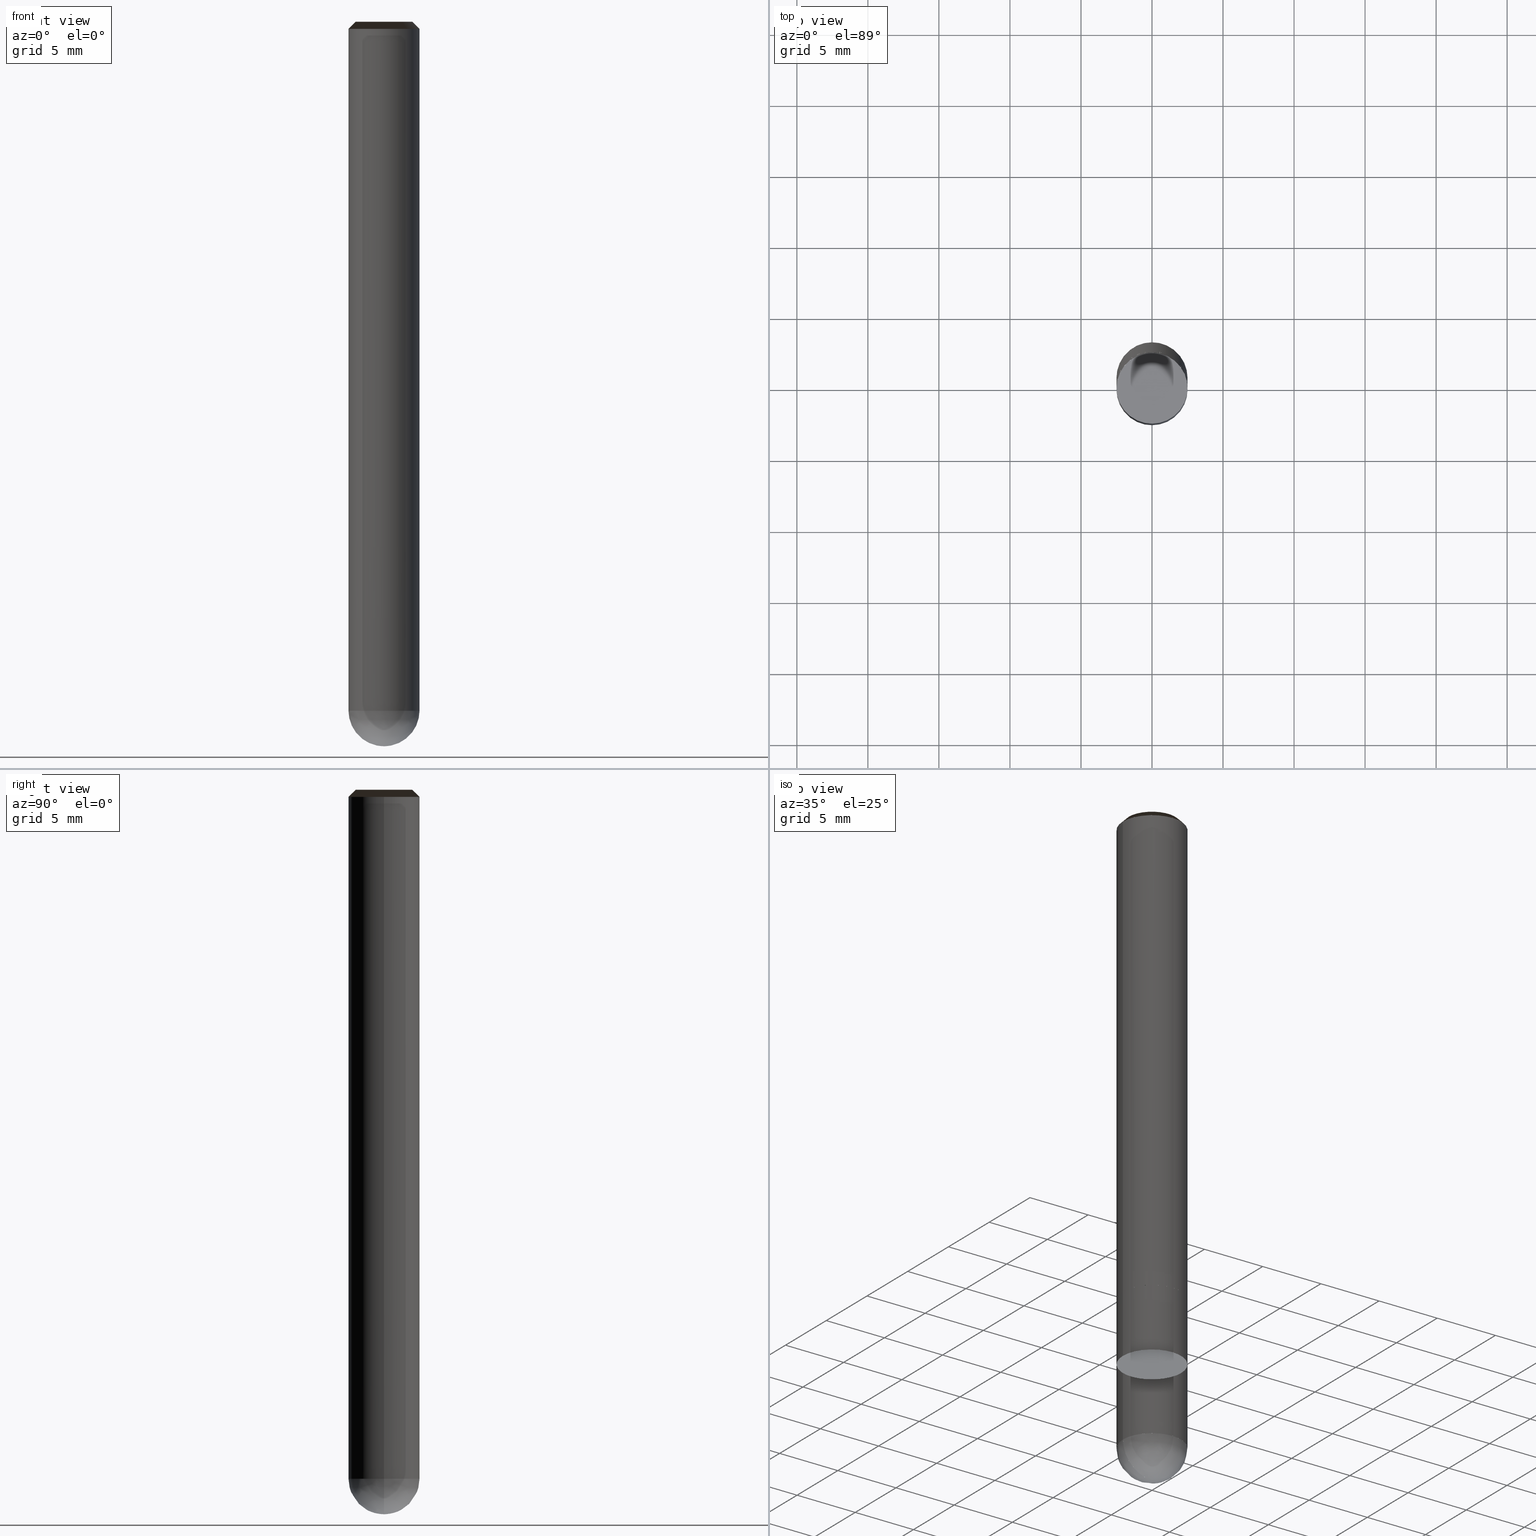
[diagram: canonical four-view strip — front | top / right | iso, engineering-drawing reading convention]
A machine part, canonical four-view strip (front | top / right | iso — engineering-drawing reading convention). The complete STEP part file that produces these views, byte-faithful:
ISO-10303-21;
HEADER;
/* Generated by ISBE GmbH (www.isbe.de) */
/* OPTION: using custom schema-name function */

FILE_DESCRIPTION(
/* description */ (''),
/* implementation_level */ '2;1');

FILE_NAME(
/*name*/ 'Drawing No  1240500   Issue 1',
/*time_stamp*/'2021-9-29T7:45:19',
/*author*/ ('ISBE GmbH'),
/*organization*/ ('ISBE GmbH'),
/*preprocessor_version*/ 'STEP IO v1.0',
/*originating_system*/ '',
/*authorisation*/ '');

FILE_SCHEMA (('AUTOMOTIVE_DESIGN'));
ENDSEC;

DATA;
#10=SHAPE_DEFINITION_REPRESENTATION(#11,#57);
#11=PRODUCT_DEFINITION_SHAPE('Document','',#13);
#12=PRODUCT_DEFINITION_CONTEXT('3D Mechanical Parts',#17,'design');
#13=PRODUCT_DEFINITION('A','First version',#14,#12);
#14=PRODUCT_DEFINITION_FORMATION_WITH_SPECIFIED_SOURCE('A','First version',#19,.MADE.);
#15=PRODUCT_RELATED_PRODUCT_CATEGORY('tool','tool',(#19));
#16=APPLICATION_PROTOCOL_DEFINITION('Draft International Standard', 'automotive_design',1999,#17);
#17=APPLICATION_CONTEXT('data for automotive mechanical design processes');
#18=PRODUCT_CONTEXT('3D Mechanical Parts',#17,'mechanical');
#19=PRODUCT('Document','Document','ISBE converted to STEP',(#18));
#20=(
LENGTH_UNIT()
NAMED_UNIT(*)
SI_UNIT(.MILLI.,.METRE.)
);
#21=(
NAMED_UNIT(*)
PLANE_ANGLE_UNIT()
SI_UNIT($,.RADIAN.)
);
#22=DIMENSIONAL_EXPONENTS(0.,0.,0.,0.,0.,0.,0.);
#23=PLANE_ANGLE_MEASURE_WITH_UNIT(PLANE_ANGLE_MEASURE(0.01745329252),#21);
#24=(
CONVERSION_BASED_UNIT('DEGREES',#23)
NAMED_UNIT(#22)
PLANE_ANGLE_UNIT()
);
#25=(
NAMED_UNIT(*)
SI_UNIT($,.STERADIAN.)
SOLID_ANGLE_UNIT()
);
#26=UNCERTAINTY_MEASURE_WITH_UNIT(LENGTH_MEASURE(0.001),#20, 'DISTANCE_ACCURACY_VALUE', 'Maximum model space distance between geometric entities at asserted connectivities');
#27=(
GEOMETRIC_REPRESENTATION_CONTEXT(3)
GLOBAL_UNCERTAINTY_ASSIGNED_CONTEXT((#26))
GLOBAL_UNIT_ASSIGNED_CONTEXT((#25,#24,#20))
REPRESENTATION_CONTEXT('ID1','3D')
);
#28=CARTESIAN_POINT('',(0.0,0.0,0.0));
#29=DIRECTION('',(1.0,0.0,0.0));
#30=DIRECTION('',(0.0,0.0,1.0));
#31=AXIS2_PLACEMENT_3D('',#28,#30,#29);
#32=CARTESIAN_POINT('',(0.0,0.0,0.0));
#33=DIRECTION('',(1.0,0.0,0.0));
#34=DIRECTION('',(0.0,0.0,1.0));
#35=AXIS2_PLACEMENT_3D('',#32,#34,#33);
#36=CARTESIAN_POINT('',(0.0,0.0,0.0));
#37=DIRECTION('',(1.0,0.0,0.0));
#38=DIRECTION('',(0.0,0.0,1.0));
#39=AXIS2_PLACEMENT_3D('',#36,#38,#37);
#40=CARTESIAN_POINT('',(0.0,0.0,0.0));
#41=DIRECTION('',(0.0,0.0,1.0));
#42=DIRECTION('',(1.0,0.0,0.0));
#43=AXIS2_PLACEMENT_3D('MCS',#40,#42,#41);
#44=CARTESIAN_POINT('',(0.0,0.0,37.0));
#45=DIRECTION('',(0.0,0.0,1.0));
#46=DIRECTION('',(1.0,0.0,0.0));
#47=AXIS2_PLACEMENT_3D('PCS',#44,#46,#45);
#48=CARTESIAN_POINT('',(0.0,0.0,-14.0));
#49=DIRECTION('',(0.0,0.0,1.0));
#50=DIRECTION('',(1.0,0.0,0.0));
#51=AXIS2_PLACEMENT_3D('CIP',#48,#50,#49);
#52=CARTESIAN_POINT('',(0.0,-2.5,-14.0));
#53=DIRECTION('',(0.0,0.0,1.0));
#54=DIRECTION('',(1.0,0.0,0.0));
#55=AXIS2_PLACEMENT_3D('CRP',#52,#54,#53);
#57=SHAPE_REPRESENTATION('Document',(#31,#35,#39,#43,#47,#51,#55),#27);
#58=DIRECTION('',(1.0,0.0,0.0));
#59=DIRECTION('',(0.0,0.0,1.0));
#60=CARTESIAN_POINT('',(-0.024998726725,-0.000252313601,-13.999599252332));
#61=CARTESIAN_POINT('',(-0.024214801927,-0.076382530875,-13.998715540502));
#62=CARTESIAN_POINT('',(-0.023228644848,-0.158482291947,-13.994863481876));
#63=CARTESIAN_POINT('',(-0.021973552647,-0.239049780144,-13.988447782373));
#64=CARTESIAN_POINT('',(-0.020299546149,-0.319047772958,-13.979475034558));
#65=CARTESIAN_POINT('',(-0.018067305115,-0.39859047038,-13.967954458536));
#66=CARTESIAN_POINT('',(-0.015141755148,-0.477656634566,-13.953897892478));
#67=CARTESIAN_POINT('',(-0.011391824297,-0.556185683153,-13.937319780455));
#68=CARTESIAN_POINT('',(-0.006690918713,-0.634101160085,-13.918237157598));
#69=CARTESIAN_POINT('',(-0.000917546966,-0.711318374795,-13.896669632592));
#70=CARTESIAN_POINT('',(0.006044020743,-0.787747358914,-13.872639367527));
#71=CARTESIAN_POINT('',(0.014303091102,-0.863294157099,-13.846171055124));
#72=CARTESIAN_POINT('',(0.023961896654,-0.937861454829,-13.817291893365));
#73=CARTESIAN_POINT('',(0.03511496199,-1.011348929588,-13.78603155754));
#74=CARTESIAN_POINT('',(0.047848492012,-1.083653492129,-13.752422169756));
#75=CARTESIAN_POINT('',(0.062239786453,-1.15466949648,-13.716498265933));
#76=CARTESIAN_POINT('',(0.078356684679,-1.224288958537,-13.678296760308));
#77=CARTESIAN_POINT('',(0.096257044815,-1.292401804518,-13.637856907513));
#78=CARTESIAN_POINT('',(0.115988261284,-1.358896160855,-13.59522026223));
#79=CARTESIAN_POINT('',(0.13758682494,-1.423658691729,-13.550430636492));
#80=CARTESIAN_POINT('',(0.161077929994,-1.486574987092,-13.50353405467));
#81=CARTESIAN_POINT('',(0.186475131943,-1.547530001827,-13.45457870617));
#82=CARTESIAN_POINT('',(0.21378006066,-1.606408545073,-13.403614895923));
#83=CARTESIAN_POINT('',(0.242982192653,-1.663095817472,-13.350694992688));
#84=CARTESIAN_POINT('',(0.274058686359,-1.717477993023,-13.295873375244));
#85=CARTESIAN_POINT('',(0.306974284042,-1.769442841362,-13.239206376509));
#86=CARTESIAN_POINT('',(0.341681283548,-1.818880385411,-13.180752225653));
#87=CARTESIAN_POINT('',(0.378119582776,-1.865683588688,-13.120570988269));
#88=CARTESIAN_POINT('',(0.416216799237,-1.909749065884,-13.058724504647));
#89=CARTESIAN_POINT('',(0.455888466522,-1.950977809795,-12.995276326228));
#90=CARTESIAN_POINT('',(0.497038308927,-1.989275927197,-12.930291650305));
#91=CARTESIAN_POINT('',(0.539558594768,-2.024555375896,-12.863837253026));
#92=CARTESIAN_POINT('',(0.583330568255,-2.056734694885,-12.795981420776));
#93=CARTESIAN_POINT('',(0.628224958997,-2.085739719347,-12.72679388001));
#94=CARTESIAN_POINT('',(0.674102567459,-2.111504272178,-12.656345725602));
#95=CARTESIAN_POINT('',(0.720814923842,-2.133970823693,-12.584709347794));
#96=CARTESIAN_POINT('',(0.768205017087,-2.153091111353,-12.511958357806));
#97=CARTESIAN_POINT('',(0.816108089865,-2.168826711545,-12.438167512198));
#98=CARTESIAN_POINT('',(0.864352494631,-2.181149555837,-12.363412636053));
#99=CARTESIAN_POINT('',(0.91276060506,-2.190042384564,-12.287770545059));
#100=CARTESIAN_POINT('',(0.961149776469,-2.195499131173,-12.211318966578));
#101=CARTESIAN_POINT('',(1.009333348177,-2.197525231401,-12.134136459774));
#102=CARTESIAN_POINT('',(1.057121680145,-2.196137852131,-12.056302334891));
#103=CARTESIAN_POINT('',(1.104323215766,-2.191366035565,-11.977896571753));
#104=CARTESIAN_POINT('',(1.150745562231,-2.183250755276,-11.898999737583));
#105=CARTESIAN_POINT('',(1.196196579605,-2.171844881647,-11.819692904211));
#106=CARTESIAN_POINT('',(1.240485469523,-2.157213055194,-11.740057564769));
#107=CARTESIAN_POINT('',(1.283423854338,-2.139431467309,-11.660175549952));
#108=CARTESIAN_POINT('',(1.324826837576,-2.118587549001,-11.580128943929));
#109=CARTESIAN_POINT('',(1.364514036683,-2.094779569237,-11.5));
#110=CARTESIAN_POINT('',(1.402914083354,-2.069258822556,-11.420138888889));
#111=CARTESIAN_POINT('',(1.44083694348,-2.043034239141,-11.340277777778));
#112=CARTESIAN_POINT('',(1.478269717998,-2.016114739009,-11.260416666667));
#113=CARTESIAN_POINT('',(1.515199674541,-1.988509478547,-11.180555555556));
#114=CARTESIAN_POINT('',(1.551614251771,-1.960227847394,-11.100694444444));
#115=CARTESIAN_POINT('',(1.587501063651,-1.931279465253,-11.020833333333));
#116=CARTESIAN_POINT('',(1.622847903656,-1.901674178612,-10.940972222222));
#117=CARTESIAN_POINT('',(1.65764274893,-1.871422057399,-10.861111111111));
#118=CARTESIAN_POINT('',(1.691873764369,-1.840533391558,-10.78125));
#119=CARTESIAN_POINT('',(1.725529306652,-1.809018687544,-10.701388888889));
#120=CARTESIAN_POINT('',(1.758597928199,-1.776888664754,-10.621527777778));
#121=CARTESIAN_POINT('',(1.791068381064,-1.74415425188,-10.541666666667));
#122=CARTESIAN_POINT('',(1.822929620762,-1.710826583189,-10.461805555556));
#123=CARTESIAN_POINT('',(1.854170810026,-1.676916994739,-10.381944444444));
#124=CARTESIAN_POINT('',(1.884781322493,-1.642437020522,-10.302083333333));
#125=CARTESIAN_POINT('',(1.914750746316,-1.60739838854,-10.222222222222));
#126=CARTESIAN_POINT('',(1.94406888771,-1.571813016817,-10.142361111111));
#127=CARTESIAN_POINT('',(1.972725774417,-1.535693009345,-10.0625));
#128=CARTESIAN_POINT('',(2.000711659095,-1.499050651967,-9.982638888889));
#129=CARTESIAN_POINT('',(2.028017022639,-1.461898408196,-9.902777777778));
#130=CARTESIAN_POINT('',(2.054632577416,-1.42424891498,-9.822916666667));
#131=CARTESIAN_POINT('',(2.080549270422,-1.386114978401,-9.743055555556));
#132=CARTESIAN_POINT('',(2.105758286367,-1.347509569316,-9.663194444444));
#133=CARTESIAN_POINT('',(2.130251050666,-1.308445818953,-9.583333333333));
#134=CARTESIAN_POINT('',(2.154019232363,-1.268937014437,-9.503472222222));
#135=CARTESIAN_POINT('',(2.17705474696,-1.228996594275,-9.423611111111));
#136=CARTESIAN_POINT('',(2.199349759167,-1.188638143782,-9.34375));
#137=CARTESIAN_POINT('',(2.220896685568,-1.147875390463,-9.263888888889));
#138=CARTESIAN_POINT('',(2.241688197204,-1.106722199343,-9.184027777778));
#139=CARTESIAN_POINT('',(2.261717222057,-1.065192568248,-9.104166666667));
#140=CARTESIAN_POINT('',(2.280976947466,-1.023300623048,-9.024305555556));
#141=CARTESIAN_POINT('',(2.299460822436,-0.981060612849,-8.944444444444));
#142=CARTESIAN_POINT('',(2.31716255987,-0.93848690515,-8.864583333333));
#143=CARTESIAN_POINT('',(2.334076138708,-0.89559398095,-8.784722222222));
#144=CARTESIAN_POINT('',(2.350195805973,-0.852396429831,-8.704861111111));
#145=CARTESIAN_POINT('',(2.365516078728,-0.808908944985,-8.625));
#146=CARTESIAN_POINT('',(2.380031745944,-0.765146318228,-8.545138888889));
#147=CARTESIAN_POINT('',(2.393737870268,-0.721123434957,-8.465277777778));
#148=CARTESIAN_POINT('',(2.406629789705,-0.676855269096,-8.385416666667));
#149=CARTESIAN_POINT('',(2.418703119204,-0.632356877998,-8.305555555556));
#150=CARTESIAN_POINT('',(2.429953752148,-0.587643397326,-8.225694444444));
#151=CARTESIAN_POINT('',(2.440377861752,-0.542730035901,-8.145833333333));
#152=CARTESIAN_POINT('',(2.449971902364,-0.497632070535,-8.065972222222));
#153=CARTESIAN_POINT('',(2.458732610672,-0.452364840827,-7.986111111111));
#154=CARTESIAN_POINT('',(2.466657006813,-0.406943743952,-7.90625));
#155=CARTESIAN_POINT('',(2.473742395385,-0.361384229422,-7.826388888889));
#156=CARTESIAN_POINT('',(2.479986366369,-0.315701793828,-7.746527777778));
#157=CARTESIAN_POINT('',(2.485386795942,-0.269911975572,-7.666666666667));
#158=CARTESIAN_POINT('',(2.489941847206,-0.224030349582,-7.586805555556));
#159=CARTESIAN_POINT('',(2.493649970807,-0.178072522014,-7.506944444444));
#160=CARTESIAN_POINT('',(2.496509905465,-0.13205412494,-7.427083333333));
#161=CARTESIAN_POINT('',(2.498520678405,-0.085990811038,-7.347222222222));
#162=CARTESIAN_POINT('',(2.499681605682,-0.039898248261,-7.267361111111));
#163=CARTESIAN_POINT('',(2.49999229242,0.006207885487,-7.1875));
#164=CARTESIAN_POINT('',(2.499452632941,0.052311907688,-7.107638888889));
#165=CARTESIAN_POINT('',(2.498062810805,0.098398136542,-7.027777777778));
#166=CARTESIAN_POINT('',(2.495823298745,0.144450896298,-6.947916666667));
#167=CARTESIAN_POINT('',(2.492734858509,0.190454522594,-6.868055555556));
#168=CARTESIAN_POINT('',(2.488798540596,0.236393367777,-6.788194444444));
#169=CARTESIAN_POINT('',(2.484015683904,0.28225180623,-6.708333333333));
#170=CARTESIAN_POINT('',(2.478387915272,0.328014239685,-6.628472222222));
#171=CARTESIAN_POINT('',(2.471917148926,0.373665102529,-6.548611111111));
#172=CARTESIAN_POINT('',(2.464605585829,0.419188867098,-6.46875));
#173=CARTESIAN_POINT('',(2.456455712935,0.464570048961,-6.388888888889));
#174=CARTESIAN_POINT('',(2.447470302335,0.509793212183,-6.309027777778));
#175=CARTESIAN_POINT('',(2.437652410324,0.554842974579,-6.229166666667));
#176=CARTESIAN_POINT('',(2.427005376356,0.599704012944,-6.149305555556));
#177=CARTESIAN_POINT('',(2.415532821906,0.644361068264,-6.069444444444));
#178=CARTESIAN_POINT('',(2.403238649245,0.68879895091,-5.989583333333));
#179=CARTESIAN_POINT('',(2.390127040107,0.733002545801,-5.909722222222));
#180=CARTESIAN_POINT('',(2.376202454268,0.776956817546,-5.829861111111));
#181=CARTESIAN_POINT('',(2.36146962803,0.820646815561,-5.75));
#182=CARTESIAN_POINT('',(2.345933572611,0.864057679149,-5.670138888889));
#183=CARTESIAN_POINT('',(2.329599572436,0.90717464256,-5.590277777778));
#184=CARTESIAN_POINT('',(2.312473183346,0.949983040009,-5.510416666667));
#185=CARTESIAN_POINT('',(2.294560230702,0.992468310669,-5.430555555556));
#186=CARTESIAN_POINT('',(2.275866807407,1.034616003619,-5.350694444444));
#187=CARTESIAN_POINT('',(2.256399271834,1.076411782762,-5.270833333333));
#188=CARTESIAN_POINT('',(2.236164245661,1.117841431702,-5.190972222222));
#189=CARTESIAN_POINT('',(2.21516861162,1.158890858576,-5.111111111111));
#190=CARTESIAN_POINT('',(2.193419511158,1.199546100853,-5.03125));
#191=CARTESIAN_POINT('',(0.024998726725,0.000252313601,-13.999599252332));
#192=CARTESIAN_POINT('',(0.024214801927,0.076382530875,-13.998715540502));
#193=CARTESIAN_POINT('',(0.023228644848,0.158482291947,-13.994863481876));
#194=CARTESIAN_POINT('',(0.021973552647,0.239049780144,-13.988447782373));
#195=CARTESIAN_POINT('',(0.020299546149,0.319047772958,-13.979475034558));
#196=CARTESIAN_POINT('',(0.018067305115,0.39859047038,-13.967954458536));
#197=CARTESIAN_POINT('',(0.015141755148,0.477656634566,-13.953897892478));
#198=CARTESIAN_POINT('',(0.011391824297,0.556185683153,-13.937319780455));
#199=CARTESIAN_POINT('',(0.006690918713,0.634101160085,-13.918237157598));
#200=CARTESIAN_POINT('',(0.000917546966,0.711318374795,-13.896669632592));
#201=CARTESIAN_POINT('',(-0.006044020743,0.787747358914,-13.872639367527));
#202=CARTESIAN_POINT('',(-0.014303091102,0.863294157099,-13.846171055124));
#203=CARTESIAN_POINT('',(-0.023961896654,0.937861454829,-13.817291893365));
#204=CARTESIAN_POINT('',(-0.03511496199,1.011348929588,-13.78603155754));
#205=CARTESIAN_POINT('',(-0.047848492012,1.083653492129,-13.752422169756));
#206=CARTESIAN_POINT('',(-0.062239786453,1.15466949648,-13.716498265933));
#207=CARTESIAN_POINT('',(-0.078356684679,1.224288958537,-13.678296760308));
#208=CARTESIAN_POINT('',(-0.096257044815,1.292401804518,-13.637856907513));
#209=CARTESIAN_POINT('',(-0.115988261284,1.358896160855,-13.59522026223));
#210=CARTESIAN_POINT('',(-0.13758682494,1.423658691729,-13.550430636492));
#211=CARTESIAN_POINT('',(-0.161077929994,1.486574987092,-13.50353405467));
#212=CARTESIAN_POINT('',(-0.186475131943,1.547530001827,-13.45457870617));
#213=CARTESIAN_POINT('',(-0.21378006066,1.606408545073,-13.403614895923));
#214=CARTESIAN_POINT('',(-0.242982192653,1.663095817472,-13.350694992688));
#215=CARTESIAN_POINT('',(-0.274058686359,1.717477993023,-13.295873375244));
#216=CARTESIAN_POINT('',(-0.306974284042,1.769442841362,-13.239206376509));
#217=CARTESIAN_POINT('',(-0.341681283548,1.818880385411,-13.180752225653));
#218=CARTESIAN_POINT('',(-0.378119582776,1.865683588688,-13.120570988269));
#219=CARTESIAN_POINT('',(-0.416216799237,1.909749065884,-13.058724504647));
#220=CARTESIAN_POINT('',(-0.455888466522,1.950977809795,-12.995276326228));
#221=CARTESIAN_POINT('',(-0.497038308927,1.989275927197,-12.930291650305));
#222=CARTESIAN_POINT('',(-0.539558594768,2.024555375896,-12.863837253026));
#223=CARTESIAN_POINT('',(-0.583330568255,2.056734694885,-12.795981420776));
#224=CARTESIAN_POINT('',(-0.628224958997,2.085739719347,-12.72679388001));
#225=CARTESIAN_POINT('',(-0.674102567459,2.111504272178,-12.656345725602));
#226=CARTESIAN_POINT('',(-0.720814923842,2.133970823693,-12.584709347794));
#227=CARTESIAN_POINT('',(-0.768205017087,2.153091111353,-12.511958357806));
#228=CARTESIAN_POINT('',(-0.816108089865,2.168826711545,-12.438167512198));
#229=CARTESIAN_POINT('',(-0.864352494631,2.181149555837,-12.363412636053));
#230=CARTESIAN_POINT('',(-0.91276060506,2.190042384564,-12.287770545059));
#231=CARTESIAN_POINT('',(-0.961149776469,2.195499131173,-12.211318966578));
#232=CARTESIAN_POINT('',(-1.009333348177,2.197525231401,-12.134136459774));
#233=CARTESIAN_POINT('',(-1.057121680145,2.196137852131,-12.056302334891));
#234=CARTESIAN_POINT('',(-1.104323215766,2.191366035565,-11.977896571753));
#235=CARTESIAN_POINT('',(-1.150745562231,2.183250755276,-11.898999737583));
#236=CARTESIAN_POINT('',(-1.196196579605,2.171844881647,-11.819692904211));
#237=CARTESIAN_POINT('',(-1.240485469523,2.157213055194,-11.740057564769));
#238=CARTESIAN_POINT('',(-1.283423854338,2.139431467309,-11.660175549952));
#239=CARTESIAN_POINT('',(-1.324826837576,2.118587549001,-11.580128943929));
#240=CARTESIAN_POINT('',(-1.364514036683,2.094779569237,-11.5));
#241=CARTESIAN_POINT('',(-1.402914083354,2.069258822556,-11.420138888889));
#242=CARTESIAN_POINT('',(-1.44083694348,2.043034239141,-11.340277777778));
#243=CARTESIAN_POINT('',(-1.478269717998,2.016114739009,-11.260416666667));
#244=CARTESIAN_POINT('',(-1.515199674541,1.988509478547,-11.180555555556));
#245=CARTESIAN_POINT('',(-1.551614251771,1.960227847394,-11.100694444444));
#246=CARTESIAN_POINT('',(-1.587501063651,1.931279465253,-11.020833333333));
#247=CARTESIAN_POINT('',(-1.622847903656,1.901674178612,-10.940972222222));
#248=CARTESIAN_POINT('',(-1.65764274893,1.871422057399,-10.861111111111));
#249=CARTESIAN_POINT('',(-1.691873764369,1.840533391558,-10.78125));
#250=CARTESIAN_POINT('',(-1.725529306652,1.809018687544,-10.701388888889));
#251=CARTESIAN_POINT('',(-1.758597928199,1.776888664754,-10.621527777778));
#252=CARTESIAN_POINT('',(-1.791068381064,1.74415425188,-10.541666666667));
#253=CARTESIAN_POINT('',(-1.822929620762,1.710826583189,-10.461805555556));
#254=CARTESIAN_POINT('',(-1.854170810026,1.676916994739,-10.381944444444));
#255=CARTESIAN_POINT('',(-1.884781322493,1.642437020522,-10.302083333333));
#256=CARTESIAN_POINT('',(-1.914750746316,1.60739838854,-10.222222222222));
#257=CARTESIAN_POINT('',(-1.94406888771,1.571813016817,-10.142361111111));
#258=CARTESIAN_POINT('',(-1.972725774417,1.535693009345,-10.0625));
#259=CARTESIAN_POINT('',(-2.000711659095,1.499050651967,-9.982638888889));
#260=CARTESIAN_POINT('',(-2.028017022639,1.461898408196,-9.902777777778));
#261=CARTESIAN_POINT('',(-2.054632577416,1.42424891498,-9.822916666667));
#262=CARTESIAN_POINT('',(-2.080549270422,1.386114978401,-9.743055555556));
#263=CARTESIAN_POINT('',(-2.105758286367,1.347509569316,-9.663194444444));
#264=CARTESIAN_POINT('',(-2.130251050666,1.308445818953,-9.583333333333));
#265=CARTESIAN_POINT('',(-2.154019232363,1.268937014437,-9.503472222222));
#266=CARTESIAN_POINT('',(-2.17705474696,1.228996594275,-9.423611111111));
#267=CARTESIAN_POINT('',(-2.199349759167,1.188638143782,-9.34375));
#268=CARTESIAN_POINT('',(-2.220896685568,1.147875390463,-9.263888888889));
#269=CARTESIAN_POINT('',(-2.241688197204,1.106722199343,-9.184027777778));
#270=CARTESIAN_POINT('',(-2.261717222057,1.065192568248,-9.104166666667));
#271=CARTESIAN_POINT('',(-2.280976947466,1.023300623048,-9.024305555556));
#272=CARTESIAN_POINT('',(-2.299460822436,0.981060612849,-8.944444444444));
#273=CARTESIAN_POINT('',(-2.31716255987,0.93848690515,-8.864583333333));
#274=CARTESIAN_POINT('',(-2.334076138708,0.89559398095,-8.784722222222));
#275=CARTESIAN_POINT('',(-2.350195805973,0.852396429831,-8.704861111111));
#276=CARTESIAN_POINT('',(-2.365516078728,0.808908944985,-8.625));
#277=CARTESIAN_POINT('',(-2.380031745944,0.765146318228,-8.545138888889));
#278=CARTESIAN_POINT('',(-2.393737870268,0.721123434957,-8.465277777778));
#279=CARTESIAN_POINT('',(-2.406629789705,0.676855269096,-8.385416666667));
#280=CARTESIAN_POINT('',(-2.418703119204,0.632356877998,-8.305555555556));
#281=CARTESIAN_POINT('',(-2.429953752148,0.587643397326,-8.225694444444));
#282=CARTESIAN_POINT('',(-2.440377861752,0.542730035901,-8.145833333333));
#283=CARTESIAN_POINT('',(-2.449971902364,0.497632070535,-8.065972222222));
#284=CARTESIAN_POINT('',(-2.458732610672,0.452364840827,-7.986111111111));
#285=CARTESIAN_POINT('',(-2.466657006813,0.406943743952,-7.90625));
#286=CARTESIAN_POINT('',(-2.473742395385,0.361384229422,-7.826388888889));
#287=CARTESIAN_POINT('',(-2.479986366369,0.315701793828,-7.746527777778));
#288=CARTESIAN_POINT('',(-2.485386795942,0.269911975572,-7.666666666667));
#289=CARTESIAN_POINT('',(-2.489941847206,0.224030349582,-7.586805555556));
#290=CARTESIAN_POINT('',(-2.493649970807,0.178072522014,-7.506944444444));
#291=CARTESIAN_POINT('',(-2.496509905465,0.13205412494,-7.427083333333));
#292=CARTESIAN_POINT('',(-2.498520678405,0.085990811038,-7.347222222222));
#293=CARTESIAN_POINT('',(-2.499681605682,0.039898248261,-7.267361111111));
#294=CARTESIAN_POINT('',(-2.49999229242,-0.006207885487,-7.1875));
#295=CARTESIAN_POINT('',(-2.499452632941,-0.052311907688,-7.107638888889));
#296=CARTESIAN_POINT('',(-2.498062810805,-0.098398136542,-7.027777777778));
#297=CARTESIAN_POINT('',(-2.495823298745,-0.144450896298,-6.947916666667));
#298=CARTESIAN_POINT('',(-2.492734858509,-0.190454522594,-6.868055555556));
#299=CARTESIAN_POINT('',(-2.488798540596,-0.236393367777,-6.788194444444));
#300=CARTESIAN_POINT('',(-2.484015683904,-0.28225180623,-6.708333333333));
#301=CARTESIAN_POINT('',(-2.478387915272,-0.328014239685,-6.628472222222));
#302=CARTESIAN_POINT('',(-2.471917148926,-0.373665102529,-6.548611111111));
#303=CARTESIAN_POINT('',(-2.464605585829,-0.419188867098,-6.46875));
#304=CARTESIAN_POINT('',(-2.456455712935,-0.464570048961,-6.388888888889));
#305=CARTESIAN_POINT('',(-2.447470302335,-0.509793212183,-6.309027777778));
#306=CARTESIAN_POINT('',(-2.437652410324,-0.554842974579,-6.229166666667));
#307=CARTESIAN_POINT('',(-2.427005376356,-0.599704012944,-6.149305555556));
#308=CARTESIAN_POINT('',(-2.415532821906,-0.644361068264,-6.069444444444));
#309=CARTESIAN_POINT('',(-2.403238649245,-0.68879895091,-5.989583333333));
#310=CARTESIAN_POINT('',(-2.390127040107,-0.733002545801,-5.909722222222));
#311=CARTESIAN_POINT('',(-2.376202454268,-0.776956817546,-5.829861111111));
#312=CARTESIAN_POINT('',(-2.36146962803,-0.820646815561,-5.75));
#313=CARTESIAN_POINT('',(-2.345933572611,-0.864057679149,-5.670138888889));
#314=CARTESIAN_POINT('',(-2.329599572436,-0.90717464256,-5.590277777778));
#315=CARTESIAN_POINT('',(-2.312473183346,-0.949983040009,-5.510416666667));
#316=CARTESIAN_POINT('',(-2.294560230702,-0.992468310669,-5.430555555556));
#317=CARTESIAN_POINT('',(-2.275866807407,-1.034616003619,-5.350694444444));
#318=CARTESIAN_POINT('',(-2.256399271834,-1.076411782762,-5.270833333333));
#319=CARTESIAN_POINT('',(-2.236164245661,-1.117841431702,-5.190972222222));
#320=CARTESIAN_POINT('',(-2.21516861162,-1.158890858576,-5.111111111111));
#321=CARTESIAN_POINT('',(-2.193419511158,-1.199546100853,-5.03125));
#322=CARTESIAN_POINT('',(0.0,0.0,-14.0));
#323=CARTESIAN_POINT('',(2.5,0.0,-14.0));
#324=CARTESIAN_POINT('',(2.5,2.5,-14.0));
#325=CARTESIAN_POINT('',(0.0,2.5,-14.0));
#326=CARTESIAN_POINT('',(-2.5,2.5,-14.0));
#327=CARTESIAN_POINT('',(-2.5,0.0,-14.0));
#328=CARTESIAN_POINT('',(2.5,0.0,-11.5));
#329=CARTESIAN_POINT('',(2.5,2.5,-11.5));
#330=CARTESIAN_POINT('',(0.0,2.5,-11.5));
#331=CARTESIAN_POINT('',(-2.5,2.5,-11.5));
#332=CARTESIAN_POINT('',(-2.5,0.0,-11.5));
#333=CARTESIAN_POINT('',(2.5,0.0,-5.0));
#334=CARTESIAN_POINT('',(2.5,2.5,-5.0));
#335=CARTESIAN_POINT('',(0.0,2.5,-5.0));
#336=CARTESIAN_POINT('',(-2.5,2.5,-5.0));
#337=CARTESIAN_POINT('',(-2.5,0.0,-5.0));
#338=CARTESIAN_POINT('',(0.0,0.0,-5.0));
#339=CARTESIAN_POINT('',(-2.5,-2.5,-14.0));
#340=CARTESIAN_POINT('',(0.0,-2.5,-14.0));
#341=CARTESIAN_POINT('',(2.5,-2.5,-14.0));
#342=CARTESIAN_POINT('',(-2.5,-2.5,-11.5));
#343=CARTESIAN_POINT('',(0.0,-2.5,-11.5));
#344=CARTESIAN_POINT('',(2.5,-2.5,-11.5));
#345=CARTESIAN_POINT('',(-2.5,-2.5,-5.0));
#346=CARTESIAN_POINT('',(0.0,-2.5,-5.0));
#347=CARTESIAN_POINT('',(2.5,-2.5,-5.0));
#348=CARTESIAN_POINT('',(2.5,0.0,0.0));
#349=CARTESIAN_POINT('',(2.5,2.5,0.0));
#350=CARTESIAN_POINT('',(0.0,2.5,0.0));
#351=CARTESIAN_POINT('',(-2.5,2.5,0.0));
#352=CARTESIAN_POINT('',(-2.5,0.0,0.0));
#353=CARTESIAN_POINT('',(2.5,0.0,36.5));
#354=CARTESIAN_POINT('',(2.5,2.5,36.5));
#355=CARTESIAN_POINT('',(0.0,2.5,36.5));
#356=CARTESIAN_POINT('',(-2.5,2.5,36.5));
#357=CARTESIAN_POINT('',(-2.5,0.0,36.5));
#358=CARTESIAN_POINT('',(2.0,0.0,37.0));
#359=CARTESIAN_POINT('',(2.0,2.0,37.0));
#360=CARTESIAN_POINT('',(0.0,2.0,37.0));
#361=CARTESIAN_POINT('',(-2.0,2.0,37.0));
#362=CARTESIAN_POINT('',(-2.0,0.0,37.0));
#363=CARTESIAN_POINT('',(0.0,0.0,37.0));
#364=CARTESIAN_POINT('',(-2.5,-2.5,0.0));
#365=CARTESIAN_POINT('',(0.0,-2.5,0.0));
#366=CARTESIAN_POINT('',(2.5,-2.5,0.0));
#367=CARTESIAN_POINT('',(-2.5,-2.5,36.5));
#368=CARTESIAN_POINT('',(0.0,-2.5,36.5));
#369=CARTESIAN_POINT('',(2.5,-2.5,36.5));
#370=CARTESIAN_POINT('',(-2.0,-2.0,37.0));
#371=CARTESIAN_POINT('',(0.0,-2.0,37.0));
#372=CARTESIAN_POINT('',(2.0,-2.0,37.0));
#373=(
BOUNDED_CURVE()
B_SPLINE_CURVE(1,(#60,#61,#62,#63,#64,#65,#66,#67,#68,#69,#70,#71,#72,#73,#74,#75,#76,#77,#78,#79,#80,#81,#82,#83,#84,#85,#86,#87,#88,#89,#90,#91,#92,#93,#94,#95,#96,#97,#98,#99,#100,#101,#102,#103,#104,#105,#106,#107,#108,#109,#110,#111,#112,#113,#114,#115,#116,#117,#118,#119,#120,#121,#122,#123,#124,#125,#126,#127,#128,#129,#130,#131,#132,#133,#134,#135,#136,#137,#138,#139,#140,#141,#142,#143,#144,#145,#146,#147,#148,#149,#150,#151,#152,#153,#154,#155,#156,#157,#158,#159,#160,#161,#162,#163,#164,#165,#166,#167,#168,#169,#170,#171,#172,#173,#174,#175,#176,#177,#178,#179,#180,#181,#182,#183,#184,#185,#186,#187,#188,#189,#190),.UNSPECIFIED.,.F.,.F.)
B_SPLINE_CURVE_WITH_KNOTS((2,1,1,1,1,1,1,1,1,1,1,1,1,1,1,1,1,1,1,1,1,1,1,1,1,1,1,1,1,1,1,1,1,1,1,1,1,1,1,1,1,1,1,1,1,1,1,1,1,1,1,1,1,1,1,1,1,1,1,1,1,1,1,1,1,1,1,1,1,1,1,1,1,1,1,1,1,1,1,1,1,1,1,1,1,1,1,1,1,1,1,1,1,1,1,1,1,1,1,1,1,1,1,1,1,1,1,1,1,1,1,1,1,1,1,1,1,1,1,1,1,1,1,1,1,1,1,1,1,1,2),
(0.0,0.006543942653,0.013608432357,0.020555714519,0.027475901984,0.034386345389,0.04129296997,0.048198580045,0.055104917099,0.062013351091,0.068925162281,0.07584167207,0.082764308361,0.089694638151,0.096634381269,0.103585411783,0.11054975043,0.117529549978,0.124527074781,0.131544675491,0.138584759776,0.145649759838,0.152742097546,0.159864147993,0.167018202285,0.174206430368,0.18143084467,0.188693265282,0.195995287355,0.203338251289,0.210723216233,0.218150937295,0.225621846783,0.233136039691,0.240693263567,0.248292912793,0.255934027254,0.263615295294,0.271335060814,0.279091334289,0.286881807494,0.294703871658,0.302554638757,0.310430965664,0.318329480823,0.326246613154,0.334178622858,0.342121633812,0.350071667238,0.358024676324,0.365950297604,0.373875918884,0.381801540164,0.389727161444,0.397652782724,0.405578404004,0.413504025284,0.421429646564,0.429355267844,0.437280889124,0.445206510404,0.453132131684,0.461057752963,0.468983374243,0.476908995523,0.484834616803,0.492760238083,0.500685859363,0.508611480643,0.516537101923,0.524462723203,0.532388344483,0.540313965763,0.548239587043,0.556165208323,0.564090829603,0.572016450883,0.579942072163,0.587867693443,0.595793314723,0.603718936003,0.611644557282,0.619570178562,0.627495799842,0.635421421122,0.643347042402,0.651272663682,0.659198284962,0.667123906242,0.675049527522,0.682975148802,0.690900770082,0.698826391362,0.706752012642,0.714677633922,0.722603255202,0.730528876482,0.738454497762,0.746380119042,0.754305740322,0.762231361602,0.770156982881,0.778082604161,0.786008225441,0.793933846721,0.801859468001,0.809785089281,0.817710710561,0.825636331841,0.833561953121,0.841487574401,0.849413195681,0.857338816961,0.865264438241,0.873190059521,0.881115680801,0.889041302081,0.896966923361,0.904892544641,0.912818165921,0.920743787201,0.92866940848,0.93659502976,0.94452065104,0.95244627232,0.9603718936,0.96829751488,0.97622313616,0.98414875744,0.99207437872,1.0),.UNSPECIFIED.)
CURVE()
GEOMETRIC_REPRESENTATION_ITEM()
RATIONAL_B_SPLINE_CURVE((1.0,1.0,1.0,1.0,1.0,1.0,1.0,1.0,1.0,1.0,1.0,1.0,1.0,1.0,1.0,1.0,1.0,1.0,1.0,1.0,1.0,1.0,1.0,1.0,1.0,1.0,1.0,1.0,1.0,1.0,1.0,1.0,1.0,1.0,1.0,1.0,1.0,1.0,1.0,1.0,1.0,1.0,1.0,1.0,1.0,1.0,1.0,1.0,1.0,1.0,1.0,1.0,1.0,1.0,1.0,1.0,1.0,1.0,1.0,1.0,1.0,1.0,1.0,1.0,1.0,1.0,1.0,1.0,1.0,1.0,1.0,1.0,1.0,1.0,1.0,1.0,1.0,1.0,1.0,1.0,1.0,1.0,1.0,1.0,1.0,1.0,1.0,1.0,1.0,1.0,1.0,1.0,1.0,1.0,1.0,1.0,1.0,1.0,1.0,1.0,1.0,1.0,1.0,1.0,1.0,1.0,1.0,1.0,1.0,1.0,1.0,1.0,1.0,1.0,1.0,1.0,1.0,1.0,1.0,1.0,1.0,1.0,1.0,1.0,1.0,1.0,1.0,1.0,1.0,1.0,1.0))
REPRESENTATION_ITEM('')
);
#374=(
BOUNDED_CURVE()
B_SPLINE_CURVE(1,(#191,#192,#193,#194,#195,#196,#197,#198,#199,#200,#201,#202,#203,#204,#205,#206,#207,#208,#209,#210,#211,#212,#213,#214,#215,#216,#217,#218,#219,#220,#221,#222,#223,#224,#225,#226,#227,#228,#229,#230,#231,#232,#233,#234,#235,#236,#237,#238,#239,#240,#241,#242,#243,#244,#245,#246,#247,#248,#249,#250,#251,#252,#253,#254,#255,#256,#257,#258,#259,#260,#261,#262,#263,#264,#265,#266,#267,#268,#269,#270,#271,#272,#273,#274,#275,#276,#277,#278,#279,#280,#281,#282,#283,#284,#285,#286,#287,#288,#289,#290,#291,#292,#293,#294,#295,#296,#297,#298,#299,#300,#301,#302,#303,#304,#305,#306,#307,#308,#309,#310,#311,#312,#313,#314,#315,#316,#317,#318,#319,#320,#321),.UNSPECIFIED.,.F.,.F.)
B_SPLINE_CURVE_WITH_KNOTS((2,1,1,1,1,1,1,1,1,1,1,1,1,1,1,1,1,1,1,1,1,1,1,1,1,1,1,1,1,1,1,1,1,1,1,1,1,1,1,1,1,1,1,1,1,1,1,1,1,1,1,1,1,1,1,1,1,1,1,1,1,1,1,1,1,1,1,1,1,1,1,1,1,1,1,1,1,1,1,1,1,1,1,1,1,1,1,1,1,1,1,1,1,1,1,1,1,1,1,1,1,1,1,1,1,1,1,1,1,1,1,1,1,1,1,1,1,1,1,1,1,1,1,1,1,1,1,1,1,1,2),
(0.0,0.006543942653,0.013608432357,0.020555714519,0.027475901984,0.034386345389,0.04129296997,0.048198580045,0.055104917099,0.062013351091,0.068925162281,0.07584167207,0.082764308361,0.089694638151,0.096634381269,0.103585411783,0.11054975043,0.117529549978,0.124527074781,0.131544675491,0.138584759776,0.145649759838,0.152742097546,0.159864147993,0.167018202285,0.174206430368,0.18143084467,0.188693265282,0.195995287355,0.203338251289,0.210723216233,0.218150937295,0.225621846783,0.233136039691,0.240693263567,0.248292912793,0.255934027254,0.263615295294,0.271335060814,0.279091334289,0.286881807494,0.294703871658,0.302554638757,0.310430965664,0.318329480823,0.326246613154,0.334178622858,0.342121633812,0.350071667238,0.358024676324,0.365950297604,0.373875918884,0.381801540164,0.389727161444,0.397652782724,0.405578404004,0.413504025284,0.421429646564,0.429355267844,0.437280889124,0.445206510404,0.453132131684,0.461057752963,0.468983374243,0.476908995523,0.484834616803,0.492760238083,0.500685859363,0.508611480643,0.516537101923,0.524462723203,0.532388344483,0.540313965763,0.548239587043,0.556165208323,0.564090829603,0.572016450883,0.579942072163,0.587867693443,0.595793314723,0.603718936003,0.611644557282,0.619570178562,0.627495799842,0.635421421122,0.643347042402,0.651272663682,0.659198284962,0.667123906242,0.675049527522,0.682975148802,0.690900770082,0.698826391362,0.706752012642,0.714677633922,0.722603255202,0.730528876482,0.738454497762,0.746380119042,0.754305740322,0.762231361602,0.770156982881,0.778082604161,0.786008225441,0.793933846721,0.801859468001,0.809785089281,0.817710710561,0.825636331841,0.833561953121,0.841487574401,0.849413195681,0.857338816961,0.865264438241,0.873190059521,0.881115680801,0.889041302081,0.896966923361,0.904892544641,0.912818165921,0.920743787201,0.92866940848,0.93659502976,0.94452065104,0.95244627232,0.9603718936,0.96829751488,0.97622313616,0.98414875744,0.99207437872,1.0),.UNSPECIFIED.)
CURVE()
GEOMETRIC_REPRESENTATION_ITEM()
RATIONAL_B_SPLINE_CURVE((1.0,1.0,1.0,1.0,1.0,1.0,1.0,1.0,1.0,1.0,1.0,1.0,1.0,1.0,1.0,1.0,1.0,1.0,1.0,1.0,1.0,1.0,1.0,1.0,1.0,1.0,1.0,1.0,1.0,1.0,1.0,1.0,1.0,1.0,1.0,1.0,1.0,1.0,1.0,1.0,1.0,1.0,1.0,1.0,1.0,1.0,1.0,1.0,1.0,1.0,1.0,1.0,1.0,1.0,1.0,1.0,1.0,1.0,1.0,1.0,1.0,1.0,1.0,1.0,1.0,1.0,1.0,1.0,1.0,1.0,1.0,1.0,1.0,1.0,1.0,1.0,1.0,1.0,1.0,1.0,1.0,1.0,1.0,1.0,1.0,1.0,1.0,1.0,1.0,1.0,1.0,1.0,1.0,1.0,1.0,1.0,1.0,1.0,1.0,1.0,1.0,1.0,1.0,1.0,1.0,1.0,1.0,1.0,1.0,1.0,1.0,1.0,1.0,1.0,1.0,1.0,1.0,1.0,1.0,1.0,1.0,1.0,1.0,1.0,1.0,1.0,1.0,1.0,1.0,1.0,1.0))
REPRESENTATION_ITEM('')
);
#375=SHAPE_REPRESENTATION_RELATIONSHIP('','',#57,#376);
#376=GEOMETRICALLY_BOUNDED_WIREFRAME_SHAPE_REPRESENTATION('Curves',(#377,#31),#27);
#377=GEOMETRIC_CURVE_SET('CurveSet',(#373,#374));
#378=(
BOUNDED_SURFACE()
B_SPLINE_SURFACE(2,2,(
(#322,#322,#322,#322,#322),
(#323,#324,#325,#326,#327),
(#328,#329,#330,#331,#332)
), .UNSPECIFIED.,.F.,.F.,.F.)
B_SPLINE_SURFACE_WITH_KNOTS((3,3),(3,2,3),(
0.0,1.0),(
0.0,0.5,1.0), .UNSPECIFIED.)
GEOMETRIC_REPRESENTATION_ITEM()
RATIONAL_B_SPLINE_SURFACE(((1.0,0.707106781187,1.0,0.707106781187,1.0),
(0.707106781187,0.5,0.707106781187,0.5,0.707106781187),
(1.0,0.707106781187,1.0,0.707106781187,1.0)
))
REPRESENTATION_ITEM('')
SURFACE()
);
#379=(
BOUNDED_CURVE()
B_SPLINE_CURVE(2,(#332,#327,#322),.UNSPECIFIED.,.F.,.F.)
B_SPLINE_CURVE_WITH_KNOTS((3,3),
(0.0,1.0),.UNSPECIFIED.)
CURVE()
GEOMETRIC_REPRESENTATION_ITEM()
RATIONAL_B_SPLINE_CURVE((1.0,0.707106781187,1.0))
REPRESENTATION_ITEM('')
);
#380=(
BOUNDED_CURVE()
B_SPLINE_CURVE(2,(#322,#323,#328),.UNSPECIFIED.,.F.,.F.)
B_SPLINE_CURVE_WITH_KNOTS((3,3),
(0.0,1.0),.UNSPECIFIED.)
CURVE()
GEOMETRIC_REPRESENTATION_ITEM()
RATIONAL_B_SPLINE_CURVE((1.0,0.707106781187,1.0))
REPRESENTATION_ITEM('')
);
#381=(
BOUNDED_CURVE()
B_SPLINE_CURVE(2,(#328,#329,#330,#331,#332),.UNSPECIFIED.,.F.,.F.)
B_SPLINE_CURVE_WITH_KNOTS((3,2,3),
(0.0,0.5,1.0),.UNSPECIFIED.)
CURVE()
GEOMETRIC_REPRESENTATION_ITEM()
RATIONAL_B_SPLINE_CURVE((1.0,0.707106781187,1.0,0.707106781187,1.0))
REPRESENTATION_ITEM('')
);
#382=VERTEX_POINT('',#322);
#383=VERTEX_POINT('',#328);
#384=VERTEX_POINT('',#332);
#385=EDGE_CURVE('',#384,#382,#379,.T.);
#386=EDGE_CURVE('',#382,#383,#380,.T.);
#387=EDGE_CURVE('',#383,#384,#381,.T.);
#388=ORIENTED_EDGE('',*,*,#385,.T.);
#389=ORIENTED_EDGE('',*,*,#386,.T.);
#390=ORIENTED_EDGE('',*,*,#387,.T.);
#391=EDGE_LOOP('',(#388,#389,#390));
#392=FACE_OUTER_BOUND('',#391,.T.);
#393=ADVANCED_FACE('',(#392),#378,.T.);
#394=(
BOUNDED_SURFACE()
B_SPLINE_SURFACE(1,2,(
(#328,#329,#330,#331,#332),
(#333,#334,#335,#336,#337)
), .UNSPECIFIED.,.F.,.F.,.F.)
B_SPLINE_SURFACE_WITH_KNOTS((2,2),(3,2,3),(
0.0,1.0),(
0.0,0.5,1.0), .UNSPECIFIED.)
GEOMETRIC_REPRESENTATION_ITEM()
RATIONAL_B_SPLINE_SURFACE(((1.0,0.707106781187,1.0,0.707106781187,1.0),
(1.0,0.707106781187,1.0,0.707106781187,1.0)
))
REPRESENTATION_ITEM('')
SURFACE()
);
#395=(
BOUNDED_CURVE()
B_SPLINE_CURVE(2,(#332,#331,#330,#329,#328),.UNSPECIFIED.,.F.,.F.)
B_SPLINE_CURVE_WITH_KNOTS((3,2,3),
(0.0,0.5,1.0),.UNSPECIFIED.)
CURVE()
GEOMETRIC_REPRESENTATION_ITEM()
RATIONAL_B_SPLINE_CURVE((1.0,0.707106781187,1.0,0.707106781187,1.0))
REPRESENTATION_ITEM('')
);
#396=(
BOUNDED_CURVE()
B_SPLINE_CURVE(1,(#328,#333),.UNSPECIFIED.,.F.,.F.)
B_SPLINE_CURVE_WITH_KNOTS((2,2),
(0.0,1.0),.UNSPECIFIED.)
CURVE()
GEOMETRIC_REPRESENTATION_ITEM()
RATIONAL_B_SPLINE_CURVE((1.0,1.0))
REPRESENTATION_ITEM('')
);
#397=(
BOUNDED_CURVE()
B_SPLINE_CURVE(2,(#333,#334,#335,#336,#337),.UNSPECIFIED.,.F.,.F.)
B_SPLINE_CURVE_WITH_KNOTS((3,2,3),
(0.0,0.5,1.0),.UNSPECIFIED.)
CURVE()
GEOMETRIC_REPRESENTATION_ITEM()
RATIONAL_B_SPLINE_CURVE((1.0,0.707106781187,1.0,0.707106781187,1.0))
REPRESENTATION_ITEM('')
);
#398=(
BOUNDED_CURVE()
B_SPLINE_CURVE(1,(#337,#332),.UNSPECIFIED.,.F.,.F.)
B_SPLINE_CURVE_WITH_KNOTS((2,2),
(0.0,1.0),.UNSPECIFIED.)
CURVE()
GEOMETRIC_REPRESENTATION_ITEM()
RATIONAL_B_SPLINE_CURVE((1.0,1.0))
REPRESENTATION_ITEM('')
);
#399=VERTEX_POINT('',#328);
#400=VERTEX_POINT('',#332);
#401=VERTEX_POINT('',#333);
#402=VERTEX_POINT('',#337);
#403=EDGE_CURVE('',#400,#399,#395,.T.);
#404=EDGE_CURVE('',#399,#401,#396,.T.);
#405=EDGE_CURVE('',#401,#402,#397,.T.);
#406=EDGE_CURVE('',#402,#400,#398,.T.);
#407=ORIENTED_EDGE('',*,*,#403,.T.);
#408=ORIENTED_EDGE('',*,*,#404,.T.);
#409=ORIENTED_EDGE('',*,*,#405,.T.);
#410=ORIENTED_EDGE('',*,*,#406,.T.);
#411=EDGE_LOOP('',(#407,#408,#409,#410));
#412=FACE_OUTER_BOUND('',#411,.T.);
#413=ADVANCED_FACE('',(#412),#394,.T.);
#414=(
BOUNDED_SURFACE()
B_SPLINE_SURFACE(1,2,(
(#333,#334,#335,#336,#337),
(#338,#338,#338,#338,#338)
), .UNSPECIFIED.,.F.,.F.,.F.)
B_SPLINE_SURFACE_WITH_KNOTS((2,2),(3,2,3),(
0.0,1.0),(
0.0,0.5,1.0), .UNSPECIFIED.)
GEOMETRIC_REPRESENTATION_ITEM()
RATIONAL_B_SPLINE_SURFACE(((1.0,0.707106781187,1.0,0.707106781187,1.0),
(1.0,0.707106781187,1.0,0.707106781187,1.0)
))
REPRESENTATION_ITEM('')
SURFACE()
);
#415=(
BOUNDED_CURVE()
B_SPLINE_CURVE(2,(#337,#336,#335,#334,#333),.UNSPECIFIED.,.F.,.F.)
B_SPLINE_CURVE_WITH_KNOTS((3,2,3),
(0.0,0.5,1.0),.UNSPECIFIED.)
CURVE()
GEOMETRIC_REPRESENTATION_ITEM()
RATIONAL_B_SPLINE_CURVE((1.0,0.707106781187,1.0,0.707106781187,1.0))
REPRESENTATION_ITEM('')
);
#416=(
BOUNDED_CURVE()
B_SPLINE_CURVE(1,(#333,#338),.UNSPECIFIED.,.F.,.F.)
B_SPLINE_CURVE_WITH_KNOTS((2,2),
(0.0,1.0),.UNSPECIFIED.)
CURVE()
GEOMETRIC_REPRESENTATION_ITEM()
RATIONAL_B_SPLINE_CURVE((1.0,1.0))
REPRESENTATION_ITEM('')
);
#417=(
BOUNDED_CURVE()
B_SPLINE_CURVE(1,(#338,#337),.UNSPECIFIED.,.F.,.F.)
B_SPLINE_CURVE_WITH_KNOTS((2,2),
(0.0,1.0),.UNSPECIFIED.)
CURVE()
GEOMETRIC_REPRESENTATION_ITEM()
RATIONAL_B_SPLINE_CURVE((1.0,1.0))
REPRESENTATION_ITEM('')
);
#418=VERTEX_POINT('',#333);
#419=VERTEX_POINT('',#337);
#420=VERTEX_POINT('',#338);
#421=EDGE_CURVE('',#419,#418,#415,.T.);
#422=EDGE_CURVE('',#418,#420,#416,.T.);
#423=EDGE_CURVE('',#420,#419,#417,.T.);
#424=ORIENTED_EDGE('',*,*,#421,.T.);
#425=ORIENTED_EDGE('',*,*,#422,.T.);
#426=ORIENTED_EDGE('',*,*,#423,.T.);
#427=EDGE_LOOP('',(#424,#425,#426));
#428=FACE_OUTER_BOUND('',#427,.T.);
#429=ADVANCED_FACE('',(#428),#414,.T.);
#430=(
BOUNDED_SURFACE()
B_SPLINE_SURFACE(2,2,(
(#322,#322,#322,#322,#322),
(#327,#339,#340,#341,#323),
(#332,#342,#343,#344,#328)
), .UNSPECIFIED.,.F.,.F.,.F.)
B_SPLINE_SURFACE_WITH_KNOTS((3,3),(3,2,3),(
0.0,1.0),(
0.0,0.5,1.0), .UNSPECIFIED.)
GEOMETRIC_REPRESENTATION_ITEM()
RATIONAL_B_SPLINE_SURFACE(((1.0,0.707106781187,1.0,0.707106781187,1.0),
(0.707106781187,0.5,0.707106781187,0.5,0.707106781187),
(1.0,0.707106781187,1.0,0.707106781187,1.0)
))
REPRESENTATION_ITEM('')
SURFACE()
);
#431=(
BOUNDED_CURVE()
B_SPLINE_CURVE(2,(#328,#323,#322),.UNSPECIFIED.,.F.,.F.)
B_SPLINE_CURVE_WITH_KNOTS((3,3),
(0.0,1.0),.UNSPECIFIED.)
CURVE()
GEOMETRIC_REPRESENTATION_ITEM()
RATIONAL_B_SPLINE_CURVE((1.0,0.707106781187,1.0))
REPRESENTATION_ITEM('')
);
#432=(
BOUNDED_CURVE()
B_SPLINE_CURVE(2,(#322,#327,#332),.UNSPECIFIED.,.F.,.F.)
B_SPLINE_CURVE_WITH_KNOTS((3,3),
(0.0,1.0),.UNSPECIFIED.)
CURVE()
GEOMETRIC_REPRESENTATION_ITEM()
RATIONAL_B_SPLINE_CURVE((1.0,0.707106781187,1.0))
REPRESENTATION_ITEM('')
);
#433=(
BOUNDED_CURVE()
B_SPLINE_CURVE(2,(#332,#342,#343,#344,#328),.UNSPECIFIED.,.F.,.F.)
B_SPLINE_CURVE_WITH_KNOTS((3,2,3),
(0.0,0.5,1.0),.UNSPECIFIED.)
CURVE()
GEOMETRIC_REPRESENTATION_ITEM()
RATIONAL_B_SPLINE_CURVE((1.0,0.707106781187,1.0,0.707106781187,1.0))
REPRESENTATION_ITEM('')
);
#434=VERTEX_POINT('',#322);
#435=VERTEX_POINT('',#328);
#436=VERTEX_POINT('',#332);
#437=EDGE_CURVE('',#435,#434,#431,.T.);
#438=EDGE_CURVE('',#434,#436,#432,.T.);
#439=EDGE_CURVE('',#436,#435,#433,.T.);
#440=ORIENTED_EDGE('',*,*,#437,.T.);
#441=ORIENTED_EDGE('',*,*,#438,.T.);
#442=ORIENTED_EDGE('',*,*,#439,.T.);
#443=EDGE_LOOP('',(#440,#441,#442));
#444=FACE_OUTER_BOUND('',#443,.T.);
#445=ADVANCED_FACE('',(#444),#430,.T.);
#446=(
BOUNDED_SURFACE()
B_SPLINE_SURFACE(1,2,(
(#332,#342,#343,#344,#328),
(#337,#345,#346,#347,#333)
), .UNSPECIFIED.,.F.,.F.,.F.)
B_SPLINE_SURFACE_WITH_KNOTS((2,2),(3,2,3),(
0.0,1.0),(
0.0,0.5,1.0), .UNSPECIFIED.)
GEOMETRIC_REPRESENTATION_ITEM()
RATIONAL_B_SPLINE_SURFACE(((1.0,0.707106781187,1.0,0.707106781187,1.0),
(1.0,0.707106781187,1.0,0.707106781187,1.0)
))
REPRESENTATION_ITEM('')
SURFACE()
);
#447=(
BOUNDED_CURVE()
B_SPLINE_CURVE(2,(#328,#344,#343,#342,#332),.UNSPECIFIED.,.F.,.F.)
B_SPLINE_CURVE_WITH_KNOTS((3,2,3),
(0.0,0.5,1.0),.UNSPECIFIED.)
CURVE()
GEOMETRIC_REPRESENTATION_ITEM()
RATIONAL_B_SPLINE_CURVE((1.0,0.707106781187,1.0,0.707106781187,1.0))
REPRESENTATION_ITEM('')
);
#448=(
BOUNDED_CURVE()
B_SPLINE_CURVE(1,(#332,#337),.UNSPECIFIED.,.F.,.F.)
B_SPLINE_CURVE_WITH_KNOTS((2,2),
(0.0,1.0),.UNSPECIFIED.)
CURVE()
GEOMETRIC_REPRESENTATION_ITEM()
RATIONAL_B_SPLINE_CURVE((1.0,1.0))
REPRESENTATION_ITEM('')
);
#449=(
BOUNDED_CURVE()
B_SPLINE_CURVE(2,(#337,#345,#346,#347,#333),.UNSPECIFIED.,.F.,.F.)
B_SPLINE_CURVE_WITH_KNOTS((3,2,3),
(0.0,0.5,1.0),.UNSPECIFIED.)
CURVE()
GEOMETRIC_REPRESENTATION_ITEM()
RATIONAL_B_SPLINE_CURVE((1.0,0.707106781187,1.0,0.707106781187,1.0))
REPRESENTATION_ITEM('')
);
#450=(
BOUNDED_CURVE()
B_SPLINE_CURVE(1,(#333,#328),.UNSPECIFIED.,.F.,.F.)
B_SPLINE_CURVE_WITH_KNOTS((2,2),
(0.0,1.0),.UNSPECIFIED.)
CURVE()
GEOMETRIC_REPRESENTATION_ITEM()
RATIONAL_B_SPLINE_CURVE((1.0,1.0))
REPRESENTATION_ITEM('')
);
#451=VERTEX_POINT('',#328);
#452=VERTEX_POINT('',#332);
#453=VERTEX_POINT('',#333);
#454=VERTEX_POINT('',#337);
#455=EDGE_CURVE('',#451,#452,#447,.T.);
#456=EDGE_CURVE('',#452,#454,#448,.T.);
#457=EDGE_CURVE('',#454,#453,#449,.T.);
#458=EDGE_CURVE('',#453,#451,#450,.T.);
#459=ORIENTED_EDGE('',*,*,#455,.T.);
#460=ORIENTED_EDGE('',*,*,#456,.T.);
#461=ORIENTED_EDGE('',*,*,#457,.T.);
#462=ORIENTED_EDGE('',*,*,#458,.T.);
#463=EDGE_LOOP('',(#459,#460,#461,#462));
#464=FACE_OUTER_BOUND('',#463,.T.);
#465=ADVANCED_FACE('',(#464),#446,.T.);
#466=(
BOUNDED_SURFACE()
B_SPLINE_SURFACE(1,2,(
(#337,#345,#346,#347,#333),
(#338,#338,#338,#338,#338)
), .UNSPECIFIED.,.F.,.F.,.F.)
B_SPLINE_SURFACE_WITH_KNOTS((2,2),(3,2,3),(
0.0,1.0),(
0.0,0.5,1.0), .UNSPECIFIED.)
GEOMETRIC_REPRESENTATION_ITEM()
RATIONAL_B_SPLINE_SURFACE(((1.0,0.707106781187,1.0,0.707106781187,1.0),
(1.0,0.707106781187,1.0,0.707106781187,1.0)
))
REPRESENTATION_ITEM('')
SURFACE()
);
#467=(
BOUNDED_CURVE()
B_SPLINE_CURVE(2,(#333,#347,#346,#345,#337),.UNSPECIFIED.,.F.,.F.)
B_SPLINE_CURVE_WITH_KNOTS((3,2,3),
(0.0,0.5,1.0),.UNSPECIFIED.)
CURVE()
GEOMETRIC_REPRESENTATION_ITEM()
RATIONAL_B_SPLINE_CURVE((1.0,0.707106781187,1.0,0.707106781187,1.0))
REPRESENTATION_ITEM('')
);
#468=(
BOUNDED_CURVE()
B_SPLINE_CURVE(1,(#337,#338),.UNSPECIFIED.,.F.,.F.)
B_SPLINE_CURVE_WITH_KNOTS((2,2),
(0.0,1.0),.UNSPECIFIED.)
CURVE()
GEOMETRIC_REPRESENTATION_ITEM()
RATIONAL_B_SPLINE_CURVE((1.0,1.0))
REPRESENTATION_ITEM('')
);
#469=(
BOUNDED_CURVE()
B_SPLINE_CURVE(1,(#338,#333),.UNSPECIFIED.,.F.,.F.)
B_SPLINE_CURVE_WITH_KNOTS((2,2),
(0.0,1.0),.UNSPECIFIED.)
CURVE()
GEOMETRIC_REPRESENTATION_ITEM()
RATIONAL_B_SPLINE_CURVE((1.0,1.0))
REPRESENTATION_ITEM('')
);
#470=VERTEX_POINT('',#333);
#471=VERTEX_POINT('',#337);
#472=VERTEX_POINT('',#338);
#473=EDGE_CURVE('',#470,#471,#467,.T.);
#474=EDGE_CURVE('',#471,#472,#468,.T.);
#475=EDGE_CURVE('',#472,#470,#469,.T.);
#476=ORIENTED_EDGE('',*,*,#473,.T.);
#477=ORIENTED_EDGE('',*,*,#474,.T.);
#478=ORIENTED_EDGE('',*,*,#475,.T.);
#479=EDGE_LOOP('',(#476,#477,#478));
#480=FACE_OUTER_BOUND('',#479,.T.);
#481=ADVANCED_FACE('',(#480),#466,.T.);
#482=CLOSED_SHELL('',(#393,#413,#429,#445,#465,#481));
#483=SHAPE_REPRESENTATION_RELATIONSHIP('','',#57,#484);
#484=ADVANCED_BREP_SHAPE_REPRESENTATION('Solid0',(#485,#31),#27);
#485=MANIFOLD_SOLID_BREP('brep',#482);
#486=(
BOUNDED_SURFACE()
B_SPLINE_SURFACE(1,2,(
(#338,#338,#338,#338,#338),
(#333,#334,#335,#336,#337)
), .UNSPECIFIED.,.F.,.F.,.F.)
B_SPLINE_SURFACE_WITH_KNOTS((2,2),(3,2,3),(
0.0,1.0),(
0.0,0.5,1.0), .UNSPECIFIED.)
GEOMETRIC_REPRESENTATION_ITEM()
RATIONAL_B_SPLINE_SURFACE(((1.0,0.707106781187,1.0,0.707106781187,1.0),
(1.0,0.707106781187,1.0,0.707106781187,1.0)
))
REPRESENTATION_ITEM('')
SURFACE()
);
#487=(
BOUNDED_CURVE()
B_SPLINE_CURVE(1,(#337,#338),.UNSPECIFIED.,.F.,.F.)
B_SPLINE_CURVE_WITH_KNOTS((2,2),
(0.0,1.0),.UNSPECIFIED.)
CURVE()
GEOMETRIC_REPRESENTATION_ITEM()
RATIONAL_B_SPLINE_CURVE((1.0,1.0))
REPRESENTATION_ITEM('')
);
#488=(
BOUNDED_CURVE()
B_SPLINE_CURVE(1,(#338,#333),.UNSPECIFIED.,.F.,.F.)
B_SPLINE_CURVE_WITH_KNOTS((2,2),
(0.0,1.0),.UNSPECIFIED.)
CURVE()
GEOMETRIC_REPRESENTATION_ITEM()
RATIONAL_B_SPLINE_CURVE((1.0,1.0))
REPRESENTATION_ITEM('')
);
#489=(
BOUNDED_CURVE()
B_SPLINE_CURVE(2,(#333,#334,#335,#336,#337),.UNSPECIFIED.,.F.,.F.)
B_SPLINE_CURVE_WITH_KNOTS((3,2,3),
(0.0,0.5,1.0),.UNSPECIFIED.)
CURVE()
GEOMETRIC_REPRESENTATION_ITEM()
RATIONAL_B_SPLINE_CURVE((1.0,0.707106781187,1.0,0.707106781187,1.0))
REPRESENTATION_ITEM('')
);
#490=VERTEX_POINT('',#333);
#491=VERTEX_POINT('',#337);
#492=VERTEX_POINT('',#338);
#493=EDGE_CURVE('',#491,#492,#487,.T.);
#494=EDGE_CURVE('',#492,#490,#488,.T.);
#495=EDGE_CURVE('',#490,#491,#489,.T.);
#496=ORIENTED_EDGE('',*,*,#493,.T.);
#497=ORIENTED_EDGE('',*,*,#494,.T.);
#498=ORIENTED_EDGE('',*,*,#495,.T.);
#499=EDGE_LOOP('',(#496,#497,#498));
#500=FACE_OUTER_BOUND('',#499,.T.);
#501=ADVANCED_FACE('',(#500),#486,.T.);
#502=(
BOUNDED_SURFACE()
B_SPLINE_SURFACE(1,2,(
(#333,#334,#335,#336,#337),
(#348,#349,#350,#351,#352)
), .UNSPECIFIED.,.F.,.F.,.F.)
B_SPLINE_SURFACE_WITH_KNOTS((2,2),(3,2,3),(
0.0,1.0),(
0.0,0.5,1.0), .UNSPECIFIED.)
GEOMETRIC_REPRESENTATION_ITEM()
RATIONAL_B_SPLINE_SURFACE(((1.0,0.707106781187,1.0,0.707106781187,1.0),
(1.0,0.707106781187,1.0,0.707106781187,1.0)
))
REPRESENTATION_ITEM('')
SURFACE()
);
#503=(
BOUNDED_CURVE()
B_SPLINE_CURVE(2,(#337,#336,#335,#334,#333),.UNSPECIFIED.,.F.,.F.)
B_SPLINE_CURVE_WITH_KNOTS((3,2,3),
(0.0,0.5,1.0),.UNSPECIFIED.)
CURVE()
GEOMETRIC_REPRESENTATION_ITEM()
RATIONAL_B_SPLINE_CURVE((1.0,0.707106781187,1.0,0.707106781187,1.0))
REPRESENTATION_ITEM('')
);
#504=(
BOUNDED_CURVE()
B_SPLINE_CURVE(1,(#333,#348),.UNSPECIFIED.,.F.,.F.)
B_SPLINE_CURVE_WITH_KNOTS((2,2),
(0.0,1.0),.UNSPECIFIED.)
CURVE()
GEOMETRIC_REPRESENTATION_ITEM()
RATIONAL_B_SPLINE_CURVE((1.0,1.0))
REPRESENTATION_ITEM('')
);
#505=(
BOUNDED_CURVE()
B_SPLINE_CURVE(2,(#348,#349,#350,#351,#352),.UNSPECIFIED.,.F.,.F.)
B_SPLINE_CURVE_WITH_KNOTS((3,2,3),
(0.0,0.5,1.0),.UNSPECIFIED.)
CURVE()
GEOMETRIC_REPRESENTATION_ITEM()
RATIONAL_B_SPLINE_CURVE((1.0,0.707106781187,1.0,0.707106781187,1.0))
REPRESENTATION_ITEM('')
);
#506=(
BOUNDED_CURVE()
B_SPLINE_CURVE(1,(#352,#337),.UNSPECIFIED.,.F.,.F.)
B_SPLINE_CURVE_WITH_KNOTS((2,2),
(0.0,1.0),.UNSPECIFIED.)
CURVE()
GEOMETRIC_REPRESENTATION_ITEM()
RATIONAL_B_SPLINE_CURVE((1.0,1.0))
REPRESENTATION_ITEM('')
);
#507=VERTEX_POINT('',#333);
#508=VERTEX_POINT('',#337);
#509=VERTEX_POINT('',#348);
#510=VERTEX_POINT('',#352);
#511=EDGE_CURVE('',#508,#507,#503,.T.);
#512=EDGE_CURVE('',#507,#509,#504,.T.);
#513=EDGE_CURVE('',#509,#510,#505,.T.);
#514=EDGE_CURVE('',#510,#508,#506,.T.);
#515=ORIENTED_EDGE('',*,*,#511,.T.);
#516=ORIENTED_EDGE('',*,*,#512,.T.);
#517=ORIENTED_EDGE('',*,*,#513,.T.);
#518=ORIENTED_EDGE('',*,*,#514,.T.);
#519=EDGE_LOOP('',(#515,#516,#517,#518));
#520=FACE_OUTER_BOUND('',#519,.T.);
#521=ADVANCED_FACE('',(#520),#502,.T.);
#522=(
BOUNDED_SURFACE()
B_SPLINE_SURFACE(1,2,(
(#348,#349,#350,#351,#352),
(#353,#354,#355,#356,#357)
), .UNSPECIFIED.,.F.,.F.,.F.)
B_SPLINE_SURFACE_WITH_KNOTS((2,2),(3,2,3),(
0.0,1.0),(
0.0,0.5,1.0), .UNSPECIFIED.)
GEOMETRIC_REPRESENTATION_ITEM()
RATIONAL_B_SPLINE_SURFACE(((1.0,0.707106781187,1.0,0.707106781187,1.0),
(1.0,0.707106781187,1.0,0.707106781187,1.0)
))
REPRESENTATION_ITEM('')
SURFACE()
);
#523=(
BOUNDED_CURVE()
B_SPLINE_CURVE(2,(#352,#351,#350,#349,#348),.UNSPECIFIED.,.F.,.F.)
B_SPLINE_CURVE_WITH_KNOTS((3,2,3),
(0.0,0.5,1.0),.UNSPECIFIED.)
CURVE()
GEOMETRIC_REPRESENTATION_ITEM()
RATIONAL_B_SPLINE_CURVE((1.0,0.707106781187,1.0,0.707106781187,1.0))
REPRESENTATION_ITEM('')
);
#524=(
BOUNDED_CURVE()
B_SPLINE_CURVE(1,(#348,#353),.UNSPECIFIED.,.F.,.F.)
B_SPLINE_CURVE_WITH_KNOTS((2,2),
(0.0,1.0),.UNSPECIFIED.)
CURVE()
GEOMETRIC_REPRESENTATION_ITEM()
RATIONAL_B_SPLINE_CURVE((1.0,1.0))
REPRESENTATION_ITEM('')
);
#525=(
BOUNDED_CURVE()
B_SPLINE_CURVE(2,(#353,#354,#355,#356,#357),.UNSPECIFIED.,.F.,.F.)
B_SPLINE_CURVE_WITH_KNOTS((3,2,3),
(0.0,0.5,1.0),.UNSPECIFIED.)
CURVE()
GEOMETRIC_REPRESENTATION_ITEM()
RATIONAL_B_SPLINE_CURVE((1.0,0.707106781187,1.0,0.707106781187,1.0))
REPRESENTATION_ITEM('')
);
#526=(
BOUNDED_CURVE()
B_SPLINE_CURVE(1,(#357,#352),.UNSPECIFIED.,.F.,.F.)
B_SPLINE_CURVE_WITH_KNOTS((2,2),
(0.0,1.0),.UNSPECIFIED.)
CURVE()
GEOMETRIC_REPRESENTATION_ITEM()
RATIONAL_B_SPLINE_CURVE((1.0,1.0))
REPRESENTATION_ITEM('')
);
#527=VERTEX_POINT('',#348);
#528=VERTEX_POINT('',#352);
#529=VERTEX_POINT('',#353);
#530=VERTEX_POINT('',#357);
#531=EDGE_CURVE('',#528,#527,#523,.T.);
#532=EDGE_CURVE('',#527,#529,#524,.T.);
#533=EDGE_CURVE('',#529,#530,#525,.T.);
#534=EDGE_CURVE('',#530,#528,#526,.T.);
#535=ORIENTED_EDGE('',*,*,#531,.T.);
#536=ORIENTED_EDGE('',*,*,#532,.T.);
#537=ORIENTED_EDGE('',*,*,#533,.T.);
#538=ORIENTED_EDGE('',*,*,#534,.T.);
#539=EDGE_LOOP('',(#535,#536,#537,#538));
#540=FACE_OUTER_BOUND('',#539,.T.);
#541=ADVANCED_FACE('',(#540),#522,.T.);
#542=(
BOUNDED_SURFACE()
B_SPLINE_SURFACE(1,2,(
(#353,#354,#355,#356,#357),
(#358,#359,#360,#361,#362)
), .UNSPECIFIED.,.F.,.F.,.F.)
B_SPLINE_SURFACE_WITH_KNOTS((2,2),(3,2,3),(
0.0,1.0),(
0.0,0.5,1.0), .UNSPECIFIED.)
GEOMETRIC_REPRESENTATION_ITEM()
RATIONAL_B_SPLINE_SURFACE(((1.0,0.707106781187,1.0,0.707106781187,1.0),
(1.0,0.707106781187,1.0,0.707106781187,1.0)
))
REPRESENTATION_ITEM('')
SURFACE()
);
#543=(
BOUNDED_CURVE()
B_SPLINE_CURVE(2,(#357,#356,#355,#354,#353),.UNSPECIFIED.,.F.,.F.)
B_SPLINE_CURVE_WITH_KNOTS((3,2,3),
(0.0,0.5,1.0),.UNSPECIFIED.)
CURVE()
GEOMETRIC_REPRESENTATION_ITEM()
RATIONAL_B_SPLINE_CURVE((1.0,0.707106781187,1.0,0.707106781187,1.0))
REPRESENTATION_ITEM('')
);
#544=(
BOUNDED_CURVE()
B_SPLINE_CURVE(1,(#353,#358),.UNSPECIFIED.,.F.,.F.)
B_SPLINE_CURVE_WITH_KNOTS((2,2),
(0.0,1.0),.UNSPECIFIED.)
CURVE()
GEOMETRIC_REPRESENTATION_ITEM()
RATIONAL_B_SPLINE_CURVE((1.0,1.0))
REPRESENTATION_ITEM('')
);
#545=(
BOUNDED_CURVE()
B_SPLINE_CURVE(2,(#358,#359,#360,#361,#362),.UNSPECIFIED.,.F.,.F.)
B_SPLINE_CURVE_WITH_KNOTS((3,2,3),
(0.0,0.5,1.0),.UNSPECIFIED.)
CURVE()
GEOMETRIC_REPRESENTATION_ITEM()
RATIONAL_B_SPLINE_CURVE((1.0,0.707106781187,1.0,0.707106781187,1.0))
REPRESENTATION_ITEM('')
);
#546=(
BOUNDED_CURVE()
B_SPLINE_CURVE(1,(#362,#357),.UNSPECIFIED.,.F.,.F.)
B_SPLINE_CURVE_WITH_KNOTS((2,2),
(0.0,1.0),.UNSPECIFIED.)
CURVE()
GEOMETRIC_REPRESENTATION_ITEM()
RATIONAL_B_SPLINE_CURVE((1.0,1.0))
REPRESENTATION_ITEM('')
);
#547=VERTEX_POINT('',#353);
#548=VERTEX_POINT('',#357);
#549=VERTEX_POINT('',#358);
#550=VERTEX_POINT('',#362);
#551=EDGE_CURVE('',#548,#547,#543,.T.);
#552=EDGE_CURVE('',#547,#549,#544,.T.);
#553=EDGE_CURVE('',#549,#550,#545,.T.);
#554=EDGE_CURVE('',#550,#548,#546,.T.);
#555=ORIENTED_EDGE('',*,*,#551,.T.);
#556=ORIENTED_EDGE('',*,*,#552,.T.);
#557=ORIENTED_EDGE('',*,*,#553,.T.);
#558=ORIENTED_EDGE('',*,*,#554,.T.);
#559=EDGE_LOOP('',(#555,#556,#557,#558));
#560=FACE_OUTER_BOUND('',#559,.T.);
#561=ADVANCED_FACE('',(#560),#542,.T.);
#562=(
BOUNDED_SURFACE()
B_SPLINE_SURFACE(1,2,(
(#358,#359,#360,#361,#362),
(#363,#363,#363,#363,#363)
), .UNSPECIFIED.,.F.,.F.,.F.)
B_SPLINE_SURFACE_WITH_KNOTS((2,2),(3,2,3),(
0.0,1.0),(
0.0,0.5,1.0), .UNSPECIFIED.)
GEOMETRIC_REPRESENTATION_ITEM()
RATIONAL_B_SPLINE_SURFACE(((1.0,0.707106781187,1.0,0.707106781187,1.0),
(1.0,0.707106781187,1.0,0.707106781187,1.0)
))
REPRESENTATION_ITEM('')
SURFACE()
);
#563=(
BOUNDED_CURVE()
B_SPLINE_CURVE(2,(#362,#361,#360,#359,#358),.UNSPECIFIED.,.F.,.F.)
B_SPLINE_CURVE_WITH_KNOTS((3,2,3),
(0.0,0.5,1.0),.UNSPECIFIED.)
CURVE()
GEOMETRIC_REPRESENTATION_ITEM()
RATIONAL_B_SPLINE_CURVE((1.0,0.707106781187,1.0,0.707106781187,1.0))
REPRESENTATION_ITEM('')
);
#564=(
BOUNDED_CURVE()
B_SPLINE_CURVE(1,(#358,#363),.UNSPECIFIED.,.F.,.F.)
B_SPLINE_CURVE_WITH_KNOTS((2,2),
(0.0,1.0),.UNSPECIFIED.)
CURVE()
GEOMETRIC_REPRESENTATION_ITEM()
RATIONAL_B_SPLINE_CURVE((1.0,1.0))
REPRESENTATION_ITEM('')
);
#565=(
BOUNDED_CURVE()
B_SPLINE_CURVE(1,(#363,#362),.UNSPECIFIED.,.F.,.F.)
B_SPLINE_CURVE_WITH_KNOTS((2,2),
(0.0,1.0),.UNSPECIFIED.)
CURVE()
GEOMETRIC_REPRESENTATION_ITEM()
RATIONAL_B_SPLINE_CURVE((1.0,1.0))
REPRESENTATION_ITEM('')
);
#566=VERTEX_POINT('',#358);
#567=VERTEX_POINT('',#362);
#568=VERTEX_POINT('',#363);
#569=EDGE_CURVE('',#567,#566,#563,.T.);
#570=EDGE_CURVE('',#566,#568,#564,.T.);
#571=EDGE_CURVE('',#568,#567,#565,.T.);
#572=ORIENTED_EDGE('',*,*,#569,.T.);
#573=ORIENTED_EDGE('',*,*,#570,.T.);
#574=ORIENTED_EDGE('',*,*,#571,.T.);
#575=EDGE_LOOP('',(#572,#573,#574));
#576=FACE_OUTER_BOUND('',#575,.T.);
#577=ADVANCED_FACE('',(#576),#562,.T.);
#578=(
BOUNDED_SURFACE()
B_SPLINE_SURFACE(1,2,(
(#338,#338,#338,#338,#338),
(#337,#345,#346,#347,#333)
), .UNSPECIFIED.,.F.,.F.,.F.)
B_SPLINE_SURFACE_WITH_KNOTS((2,2),(3,2,3),(
0.0,1.0),(
0.0,0.5,1.0), .UNSPECIFIED.)
GEOMETRIC_REPRESENTATION_ITEM()
RATIONAL_B_SPLINE_SURFACE(((1.0,0.707106781187,1.0,0.707106781187,1.0),
(1.0,0.707106781187,1.0,0.707106781187,1.0)
))
REPRESENTATION_ITEM('')
SURFACE()
);
#579=(
BOUNDED_CURVE()
B_SPLINE_CURVE(1,(#333,#338),.UNSPECIFIED.,.F.,.F.)
B_SPLINE_CURVE_WITH_KNOTS((2,2),
(0.0,1.0),.UNSPECIFIED.)
CURVE()
GEOMETRIC_REPRESENTATION_ITEM()
RATIONAL_B_SPLINE_CURVE((1.0,1.0))
REPRESENTATION_ITEM('')
);
#580=(
BOUNDED_CURVE()
B_SPLINE_CURVE(1,(#338,#337),.UNSPECIFIED.,.F.,.F.)
B_SPLINE_CURVE_WITH_KNOTS((2,2),
(0.0,1.0),.UNSPECIFIED.)
CURVE()
GEOMETRIC_REPRESENTATION_ITEM()
RATIONAL_B_SPLINE_CURVE((1.0,1.0))
REPRESENTATION_ITEM('')
);
#581=(
BOUNDED_CURVE()
B_SPLINE_CURVE(2,(#337,#345,#346,#347,#333),.UNSPECIFIED.,.F.,.F.)
B_SPLINE_CURVE_WITH_KNOTS((3,2,3),
(0.0,0.5,1.0),.UNSPECIFIED.)
CURVE()
GEOMETRIC_REPRESENTATION_ITEM()
RATIONAL_B_SPLINE_CURVE((1.0,0.707106781187,1.0,0.707106781187,1.0))
REPRESENTATION_ITEM('')
);
#582=VERTEX_POINT('',#333);
#583=VERTEX_POINT('',#337);
#584=VERTEX_POINT('',#338);
#585=EDGE_CURVE('',#582,#584,#579,.T.);
#586=EDGE_CURVE('',#584,#583,#580,.T.);
#587=EDGE_CURVE('',#583,#582,#581,.T.);
#588=ORIENTED_EDGE('',*,*,#585,.T.);
#589=ORIENTED_EDGE('',*,*,#586,.T.);
#590=ORIENTED_EDGE('',*,*,#587,.T.);
#591=EDGE_LOOP('',(#588,#589,#590));
#592=FACE_OUTER_BOUND('',#591,.T.);
#593=ADVANCED_FACE('',(#592),#578,.T.);
#594=(
BOUNDED_SURFACE()
B_SPLINE_SURFACE(1,2,(
(#337,#345,#346,#347,#333),
(#352,#364,#365,#366,#348)
), .UNSPECIFIED.,.F.,.F.,.F.)
B_SPLINE_SURFACE_WITH_KNOTS((2,2),(3,2,3),(
0.0,1.0),(
0.0,0.5,1.0), .UNSPECIFIED.)
GEOMETRIC_REPRESENTATION_ITEM()
RATIONAL_B_SPLINE_SURFACE(((1.0,0.707106781187,1.0,0.707106781187,1.0),
(1.0,0.707106781187,1.0,0.707106781187,1.0)
))
REPRESENTATION_ITEM('')
SURFACE()
);
#595=(
BOUNDED_CURVE()
B_SPLINE_CURVE(2,(#333,#347,#346,#345,#337),.UNSPECIFIED.,.F.,.F.)
B_SPLINE_CURVE_WITH_KNOTS((3,2,3),
(0.0,0.5,1.0),.UNSPECIFIED.)
CURVE()
GEOMETRIC_REPRESENTATION_ITEM()
RATIONAL_B_SPLINE_CURVE((1.0,0.707106781187,1.0,0.707106781187,1.0))
REPRESENTATION_ITEM('')
);
#596=(
BOUNDED_CURVE()
B_SPLINE_CURVE(1,(#337,#352),.UNSPECIFIED.,.F.,.F.)
B_SPLINE_CURVE_WITH_KNOTS((2,2),
(0.0,1.0),.UNSPECIFIED.)
CURVE()
GEOMETRIC_REPRESENTATION_ITEM()
RATIONAL_B_SPLINE_CURVE((1.0,1.0))
REPRESENTATION_ITEM('')
);
#597=(
BOUNDED_CURVE()
B_SPLINE_CURVE(2,(#352,#364,#365,#366,#348),.UNSPECIFIED.,.F.,.F.)
B_SPLINE_CURVE_WITH_KNOTS((3,2,3),
(0.0,0.5,1.0),.UNSPECIFIED.)
CURVE()
GEOMETRIC_REPRESENTATION_ITEM()
RATIONAL_B_SPLINE_CURVE((1.0,0.707106781187,1.0,0.707106781187,1.0))
REPRESENTATION_ITEM('')
);
#598=(
BOUNDED_CURVE()
B_SPLINE_CURVE(1,(#348,#333),.UNSPECIFIED.,.F.,.F.)
B_SPLINE_CURVE_WITH_KNOTS((2,2),
(0.0,1.0),.UNSPECIFIED.)
CURVE()
GEOMETRIC_REPRESENTATION_ITEM()
RATIONAL_B_SPLINE_CURVE((1.0,1.0))
REPRESENTATION_ITEM('')
);
#599=VERTEX_POINT('',#333);
#600=VERTEX_POINT('',#337);
#601=VERTEX_POINT('',#348);
#602=VERTEX_POINT('',#352);
#603=EDGE_CURVE('',#599,#600,#595,.T.);
#604=EDGE_CURVE('',#600,#602,#596,.T.);
#605=EDGE_CURVE('',#602,#601,#597,.T.);
#606=EDGE_CURVE('',#601,#599,#598,.T.);
#607=ORIENTED_EDGE('',*,*,#603,.T.);
#608=ORIENTED_EDGE('',*,*,#604,.T.);
#609=ORIENTED_EDGE('',*,*,#605,.T.);
#610=ORIENTED_EDGE('',*,*,#606,.T.);
#611=EDGE_LOOP('',(#607,#608,#609,#610));
#612=FACE_OUTER_BOUND('',#611,.T.);
#613=ADVANCED_FACE('',(#612),#594,.T.);
#614=(
BOUNDED_SURFACE()
B_SPLINE_SURFACE(1,2,(
(#352,#364,#365,#366,#348),
(#357,#367,#368,#369,#353)
), .UNSPECIFIED.,.F.,.F.,.F.)
B_SPLINE_SURFACE_WITH_KNOTS((2,2),(3,2,3),(
0.0,1.0),(
0.0,0.5,1.0), .UNSPECIFIED.)
GEOMETRIC_REPRESENTATION_ITEM()
RATIONAL_B_SPLINE_SURFACE(((1.0,0.707106781187,1.0,0.707106781187,1.0),
(1.0,0.707106781187,1.0,0.707106781187,1.0)
))
REPRESENTATION_ITEM('')
SURFACE()
);
#615=(
BOUNDED_CURVE()
B_SPLINE_CURVE(2,(#348,#366,#365,#364,#352),.UNSPECIFIED.,.F.,.F.)
B_SPLINE_CURVE_WITH_KNOTS((3,2,3),
(0.0,0.5,1.0),.UNSPECIFIED.)
CURVE()
GEOMETRIC_REPRESENTATION_ITEM()
RATIONAL_B_SPLINE_CURVE((1.0,0.707106781187,1.0,0.707106781187,1.0))
REPRESENTATION_ITEM('')
);
#616=(
BOUNDED_CURVE()
B_SPLINE_CURVE(1,(#352,#357),.UNSPECIFIED.,.F.,.F.)
B_SPLINE_CURVE_WITH_KNOTS((2,2),
(0.0,1.0),.UNSPECIFIED.)
CURVE()
GEOMETRIC_REPRESENTATION_ITEM()
RATIONAL_B_SPLINE_CURVE((1.0,1.0))
REPRESENTATION_ITEM('')
);
#617=(
BOUNDED_CURVE()
B_SPLINE_CURVE(2,(#357,#367,#368,#369,#353),.UNSPECIFIED.,.F.,.F.)
B_SPLINE_CURVE_WITH_KNOTS((3,2,3),
(0.0,0.5,1.0),.UNSPECIFIED.)
CURVE()
GEOMETRIC_REPRESENTATION_ITEM()
RATIONAL_B_SPLINE_CURVE((1.0,0.707106781187,1.0,0.707106781187,1.0))
REPRESENTATION_ITEM('')
);
#618=(
BOUNDED_CURVE()
B_SPLINE_CURVE(1,(#353,#348),.UNSPECIFIED.,.F.,.F.)
B_SPLINE_CURVE_WITH_KNOTS((2,2),
(0.0,1.0),.UNSPECIFIED.)
CURVE()
GEOMETRIC_REPRESENTATION_ITEM()
RATIONAL_B_SPLINE_CURVE((1.0,1.0))
REPRESENTATION_ITEM('')
);
#619=VERTEX_POINT('',#348);
#620=VERTEX_POINT('',#352);
#621=VERTEX_POINT('',#353);
#622=VERTEX_POINT('',#357);
#623=EDGE_CURVE('',#619,#620,#615,.T.);
#624=EDGE_CURVE('',#620,#622,#616,.T.);
#625=EDGE_CURVE('',#622,#621,#617,.T.);
#626=EDGE_CURVE('',#621,#619,#618,.T.);
#627=ORIENTED_EDGE('',*,*,#623,.T.);
#628=ORIENTED_EDGE('',*,*,#624,.T.);
#629=ORIENTED_EDGE('',*,*,#625,.T.);
#630=ORIENTED_EDGE('',*,*,#626,.T.);
#631=EDGE_LOOP('',(#627,#628,#629,#630));
#632=FACE_OUTER_BOUND('',#631,.T.);
#633=ADVANCED_FACE('',(#632),#614,.T.);
#634=(
BOUNDED_SURFACE()
B_SPLINE_SURFACE(1,2,(
(#357,#367,#368,#369,#353),
(#362,#370,#371,#372,#358)
), .UNSPECIFIED.,.F.,.F.,.F.)
B_SPLINE_SURFACE_WITH_KNOTS((2,2),(3,2,3),(
0.0,1.0),(
0.0,0.5,1.0), .UNSPECIFIED.)
GEOMETRIC_REPRESENTATION_ITEM()
RATIONAL_B_SPLINE_SURFACE(((1.0,0.707106781187,1.0,0.707106781187,1.0),
(1.0,0.707106781187,1.0,0.707106781187,1.0)
))
REPRESENTATION_ITEM('')
SURFACE()
);
#635=(
BOUNDED_CURVE()
B_SPLINE_CURVE(2,(#353,#369,#368,#367,#357),.UNSPECIFIED.,.F.,.F.)
B_SPLINE_CURVE_WITH_KNOTS((3,2,3),
(0.0,0.5,1.0),.UNSPECIFIED.)
CURVE()
GEOMETRIC_REPRESENTATION_ITEM()
RATIONAL_B_SPLINE_CURVE((1.0,0.707106781187,1.0,0.707106781187,1.0))
REPRESENTATION_ITEM('')
);
#636=(
BOUNDED_CURVE()
B_SPLINE_CURVE(1,(#357,#362),.UNSPECIFIED.,.F.,.F.)
B_SPLINE_CURVE_WITH_KNOTS((2,2),
(0.0,1.0),.UNSPECIFIED.)
CURVE()
GEOMETRIC_REPRESENTATION_ITEM()
RATIONAL_B_SPLINE_CURVE((1.0,1.0))
REPRESENTATION_ITEM('')
);
#637=(
BOUNDED_CURVE()
B_SPLINE_CURVE(2,(#362,#370,#371,#372,#358),.UNSPECIFIED.,.F.,.F.)
B_SPLINE_CURVE_WITH_KNOTS((3,2,3),
(0.0,0.5,1.0),.UNSPECIFIED.)
CURVE()
GEOMETRIC_REPRESENTATION_ITEM()
RATIONAL_B_SPLINE_CURVE((1.0,0.707106781187,1.0,0.707106781187,1.0))
REPRESENTATION_ITEM('')
);
#638=(
BOUNDED_CURVE()
B_SPLINE_CURVE(1,(#358,#353),.UNSPECIFIED.,.F.,.F.)
B_SPLINE_CURVE_WITH_KNOTS((2,2),
(0.0,1.0),.UNSPECIFIED.)
CURVE()
GEOMETRIC_REPRESENTATION_ITEM()
RATIONAL_B_SPLINE_CURVE((1.0,1.0))
REPRESENTATION_ITEM('')
);
#639=VERTEX_POINT('',#353);
#640=VERTEX_POINT('',#357);
#641=VERTEX_POINT('',#358);
#642=VERTEX_POINT('',#362);
#643=EDGE_CURVE('',#639,#640,#635,.T.);
#644=EDGE_CURVE('',#640,#642,#636,.T.);
#645=EDGE_CURVE('',#642,#641,#637,.T.);
#646=EDGE_CURVE('',#641,#639,#638,.T.);
#647=ORIENTED_EDGE('',*,*,#643,.T.);
#648=ORIENTED_EDGE('',*,*,#644,.T.);
#649=ORIENTED_EDGE('',*,*,#645,.T.);
#650=ORIENTED_EDGE('',*,*,#646,.T.);
#651=EDGE_LOOP('',(#647,#648,#649,#650));
#652=FACE_OUTER_BOUND('',#651,.T.);
#653=ADVANCED_FACE('',(#652),#634,.T.);
#654=(
BOUNDED_SURFACE()
B_SPLINE_SURFACE(1,2,(
(#362,#370,#371,#372,#358),
(#363,#363,#363,#363,#363)
), .UNSPECIFIED.,.F.,.F.,.F.)
B_SPLINE_SURFACE_WITH_KNOTS((2,2),(3,2,3),(
0.0,1.0),(
0.0,0.5,1.0), .UNSPECIFIED.)
GEOMETRIC_REPRESENTATION_ITEM()
RATIONAL_B_SPLINE_SURFACE(((1.0,0.707106781187,1.0,0.707106781187,1.0),
(1.0,0.707106781187,1.0,0.707106781187,1.0)
))
REPRESENTATION_ITEM('')
SURFACE()
);
#655=(
BOUNDED_CURVE()
B_SPLINE_CURVE(2,(#358,#372,#371,#370,#362),.UNSPECIFIED.,.F.,.F.)
B_SPLINE_CURVE_WITH_KNOTS((3,2,3),
(0.0,0.5,1.0),.UNSPECIFIED.)
CURVE()
GEOMETRIC_REPRESENTATION_ITEM()
RATIONAL_B_SPLINE_CURVE((1.0,0.707106781187,1.0,0.707106781187,1.0))
REPRESENTATION_ITEM('')
);
#656=(
BOUNDED_CURVE()
B_SPLINE_CURVE(1,(#362,#363),.UNSPECIFIED.,.F.,.F.)
B_SPLINE_CURVE_WITH_KNOTS((2,2),
(0.0,1.0),.UNSPECIFIED.)
CURVE()
GEOMETRIC_REPRESENTATION_ITEM()
RATIONAL_B_SPLINE_CURVE((1.0,1.0))
REPRESENTATION_ITEM('')
);
#657=(
BOUNDED_CURVE()
B_SPLINE_CURVE(1,(#363,#358),.UNSPECIFIED.,.F.,.F.)
B_SPLINE_CURVE_WITH_KNOTS((2,2),
(0.0,1.0),.UNSPECIFIED.)
CURVE()
GEOMETRIC_REPRESENTATION_ITEM()
RATIONAL_B_SPLINE_CURVE((1.0,1.0))
REPRESENTATION_ITEM('')
);
#658=VERTEX_POINT('',#358);
#659=VERTEX_POINT('',#362);
#660=VERTEX_POINT('',#363);
#661=EDGE_CURVE('',#658,#659,#655,.T.);
#662=EDGE_CURVE('',#659,#660,#656,.T.);
#663=EDGE_CURVE('',#660,#658,#657,.T.);
#664=ORIENTED_EDGE('',*,*,#661,.T.);
#665=ORIENTED_EDGE('',*,*,#662,.T.);
#666=ORIENTED_EDGE('',*,*,#663,.T.);
#667=EDGE_LOOP('',(#664,#665,#666));
#668=FACE_OUTER_BOUND('',#667,.T.);
#669=ADVANCED_FACE('',(#668),#654,.T.);
#670=CLOSED_SHELL('',(#501,#521,#541,#561,#577,#593,#613,#633,#653,#669));
#671=SHAPE_REPRESENTATION_RELATIONSHIP('','',#57,#672);
#672=ADVANCED_BREP_SHAPE_REPRESENTATION('Solid1',(#673,#31),#27);
#673=MANIFOLD_SOLID_BREP('brep',#670);
#674=PRESENTATION_LAYER_ASSIGNMENT('CUT','',(#485));
#675=PRESENTATION_LAYER_ASSIGNMENT('NOCUT','',(#673));
#676=PRESENTATION_LAYER_ASSIGNMENT('DETAILS','',(#373,#374));
#677=COLOUR_RGB('',0.8,0.8,0.8);
#678=COLOUR_RGB('',0.501960784314,0.501960784314,0.501960784314);
#679=COLOUR_RGB('',0.0,0.0,1.0);
#680=STYLED_ITEM('',(#681),#373);
#681=PRESENTATION_STYLE_ASSIGNMENT((#682));
#682=CURVE_STYLE('',#683,POSITIVE_LENGTH_MEASURE(0.02),#679);
#683=DRAUGHTING_PRE_DEFINED_CURVE_FONT('continuous');
#684=STYLED_ITEM('',(#685),#374);
#685=PRESENTATION_STYLE_ASSIGNMENT((#686));
#686=CURVE_STYLE('',#687,POSITIVE_LENGTH_MEASURE(0.02),#679);
#687=DRAUGHTING_PRE_DEFINED_CURVE_FONT('continuous');
#688=STYLED_ITEM('',(#689),#485);
#689=PRESENTATION_STYLE_ASSIGNMENT((#690));
#690=SURFACE_STYLE_USAGE(.BOTH.,#691);
#691=SURFACE_SIDE_STYLE('',(#692));
#692=SURFACE_STYLE_FILL_AREA(#693);
#693=FILL_AREA_STYLE('',(#694));
#694=FILL_AREA_STYLE_COLOUR('',#677);
#695=STYLED_ITEM('',(#696),#673);
#696=PRESENTATION_STYLE_ASSIGNMENT((#697));
#697=SURFACE_STYLE_USAGE(.BOTH.,#698);
#698=SURFACE_SIDE_STYLE('',(#699));
#699=SURFACE_STYLE_FILL_AREA(#700);
#700=FILL_AREA_STYLE('',(#701));
#701=FILL_AREA_STYLE_COLOUR('',#678);
#702=MECHANICAL_DESIGN_GEOMETRIC_PRESENTATION_REPRESENTATION('',(#680,#684,#688,#695),#27);
#703==CONSTRUCTIVE_GEOMETRY_REPRESENTATION('coordinate systems',(#43,#47,#51,#55), #27);
#704==CONSTRUCTIVE_GEOMETRY_REPRESENTATION_RELATIONSHIP('coordinate systems',$,#57,#703);

ENDSEC;
END-ISO-10303-21;